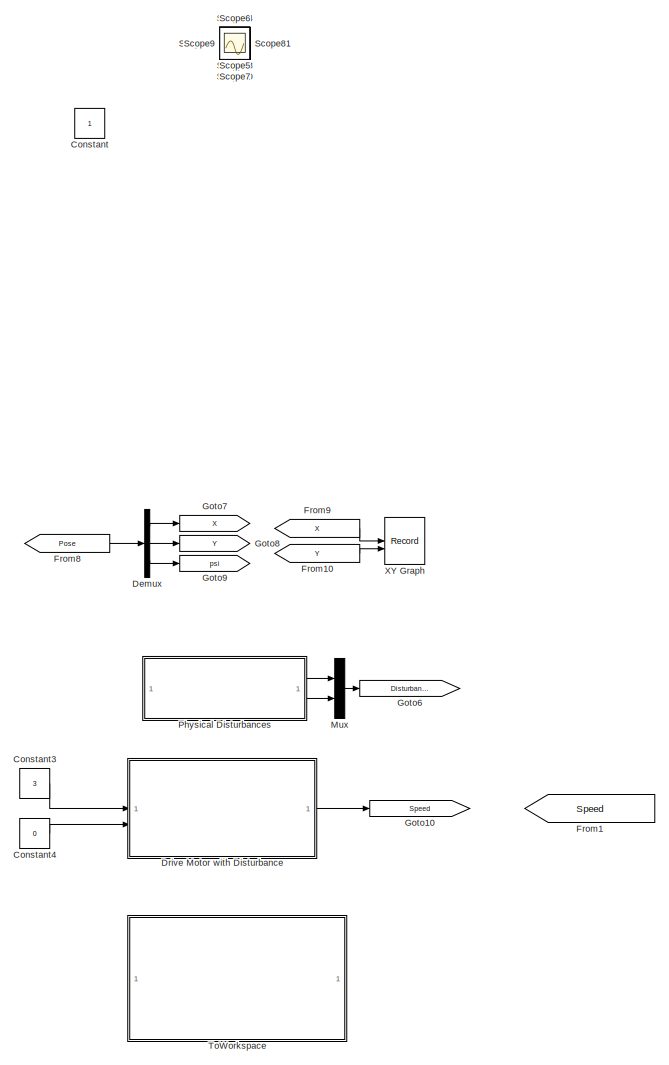
[diagram: root canvas - part 1/3, right side, full height]
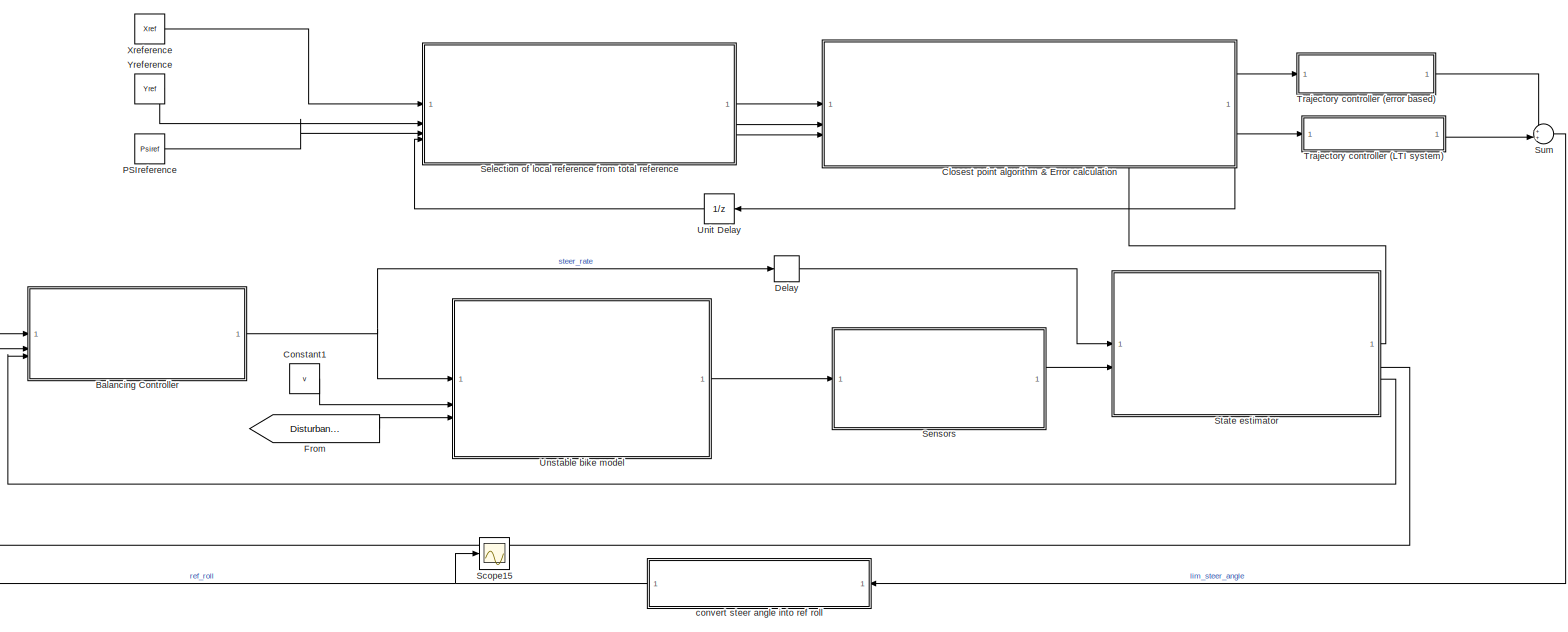
[diagram: root canvas - part 2/3, central region]
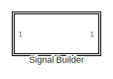
[diagram: root canvas - part 3/3, middle left region]
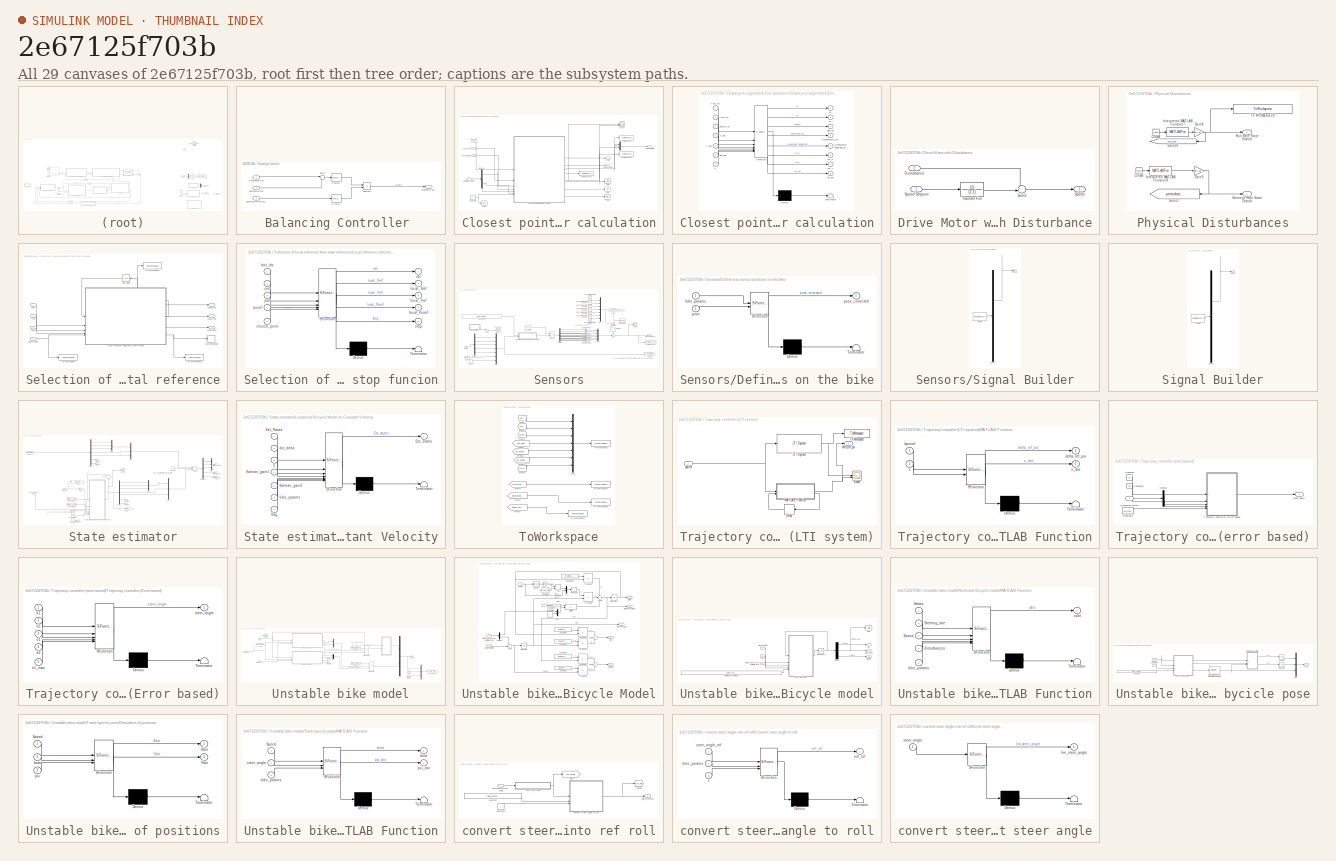
[diagram: thumbnail index - all 29 canvases of the model, root first then tree order]
MODEL slx_2e67125f703b
KIND model
CONFIG AbsTol = auto
CONFIG EnableMultiTasking = off
CONFIG FixedStep = auto
CONFIG MaxStep = auto
CONFIG MinStep = auto
CONFIG RelTol = 1e-3
CONFIG SampleTimeConstraint = Unconstrained
CONFIG SolverName = VariableStepAuto
CONFIG StartTime = 0.0
CONFIG StopTime = sim_time-0.02
BLOCK [SubSystem] Balancing Controller 
  MinAlgLoopOccurrences = on
  SystemSampleTime = Ts
  TreatAsAtomicUnit = on
BLOCK [Reference] Balancing Controller /D term1  REF=slpidlib/PID Controller
  SourceBlock = slpidlib/PID Controller
  SourceType = PID 1dof
BLOCK [Inport] Balancing Controller /Estimated Roll
  Port = 2
BLOCK [Inport] Balancing Controller /Estimated Roll Rate
  Port = 3
BLOCK [Reference] Balancing Controller /P term1  REF=slpidlib/PID Controller
  SourceBlock = slpidlib/PID Controller
  SourceType = PID 1dof
BLOCK [Inport] Balancing Controller /Reference Roll
BLOCK [Outport] Balancing Controller /Steering Rate
BLOCK [Sum] Balancing Controller /Subtract
  IconShape = rectangular
  Inputs = +-
BLOCK [Sum] Balancing Controller /Sum2
  Inputs = |+-
BLOCK [SubSystem] Closest point algorithm & Error calculation
  PortSchema = {"entries":[{"content":{"sides":[{"content":{"connectorIds":["In1","In2","In3"]},"type":"ConnectorPlacement.EquallySpacedRectSide","uuid":"cc846df4-97c1-4e38-a551-63d96742d514"},{"content":{"connectorIds":["Out1","Out2"],"side":"RIGHT"},"type":"ConnectorPlacement.EquallySpacedRectSide","uuid":"926eeee4-c51a-40d9-a9a1-df7a0c76cd55"},{"content":{"connectorIds":[],"side":"TOP"},"type":"ConnectorPlace...<+415ch>
BLOCK [SubSystem] Closest point algorithm & Error calculation/Closest point algorithm & Error calculation
  ErrorFcn = Stateflow.Translate.translate
  PermitHierarchicalResolution = ExplicitOnly
  SFBlockType = MATLAB Function
  TreatAsAtomicUnit = on
BLOCK [Demux] Closest point algorithm & Error calculation/Closest point algorithm & Error calculation/ Demux 
  Outputs = 1
BLOCK [S-Function] Closest point algorithm & Error calculation/Closest point algorithm & Error calculation/ SFunction 
  EnableBusSupport = on
  FunctionName = sf_sfun
  PortCounts = [7 9]
  SFcnIsStateOwnerBlock = off
  SFunctionDeploymentMode = off
  Tag = Stateflow S-Function 5
BLOCK [Terminator] Closest point algorithm & Error calculation/Closest point algorithm & Error calculation/ Terminator 
BLOCK [Inport] Closest point algorithm & Error calculation/Closest point algorithm & Error calculation/X_est
  Port = 4
BLOCK [Inport] Closest point algorithm & Error calculation/Closest point algorithm & Error calculation/Xref_loc
BLOCK [Inport] Closest point algorithm & Error calculation/Closest point algorithm & Error calculation/Y_est
  Port = 5
BLOCK [Inport] Closest point algorithm & Error calculation/Closest point algorithm & Error calculation/Yref_loc
  Port = 2
BLOCK [Outport] Closest point algorithm & Error calculation/Closest point algorithm & Error calculation/closestpoint_heading_idx
  Port = 5
BLOCK [Outport] Closest point algorithm & Error calculation/Closest point algorithm & Error calculation/closestpoint_idx
  Port = 4
BLOCK [Outport] Closest point algorithm & Error calculation/Closest point algorithm & Error calculation/dpsiref
  Port = 3
BLOCK [Outport] Closest point algorithm & Error calculation/Closest point algorithm & Error calculation/e1
BLOCK [Outport] Closest point algorithm & Error calculation/Closest point algorithm & Error calculation/e2
  Port = 2
BLOCK [Inport] Closest point algorithm & Error calculation/Closest point algorithm & Error calculation/psi_est
  Port = 6
BLOCK [Inport] Closest point algorithm & Error calculation/Closest point algorithm & Error calculation/psiref_loc
  Port = 3
BLOCK [Outport] Closest point algorithm & Error calculation/Closest point algorithm & Error calculation/ref_X
  Port = 6
BLOCK [Outport] Closest point algorithm & Error calculation/Closest point algorithm & Error calculation/ref_Y
  Port = 7
BLOCK [Outport] Closest point algorithm & Error calculation/Closest point algorithm & Error calculation/ref_psi
  Port = 8
BLOCK [Inport] Closest point algorithm & Error calculation/Closest point algorithm & Error calculation/v
  Port = 7
BLOCK [Constant] Closest point algorithm & Error calculation/Constant1
  Value = v
BLOCK [Demux] Closest point algorithm & Error calculation/Demux1
  Outputs = 3
BLOCK [Inport] Closest point algorithm & Error calculation/Estimated_states
  Port = 4
BLOCK [Goto] Closest point algorithm & Error calculation/Goto
  GotoTag = refX
  TagVisibility = global
BLOCK [Goto] Closest point algorithm & Error calculation/Goto1
  GotoTag = refY
  TagVisibility = global
BLOCK [Goto] Closest point algorithm & Error calculation/Goto2
  GotoTag = refPsi
  TagVisibility = global
BLOCK [Goto] Closest point algorithm & Error calculation/Goto3
  GotoTag = ref_v
  TagVisibility = global
BLOCK [Inport] Closest point algorithm & Error calculation/Local_Psiref
  Port = 3
BLOCK [Inport] Closest point algorithm & Error calculation/Local_Xref
BLOCK [Inport] Closest point algorithm & Error calculation/Local_Yref
  Port = 2
BLOCK [Mux] Closest point algorithm & Error calculation/Mux1
  DisplayOption = bar
  Inputs = 2
BLOCK [Scope] Closest point algorithm & Error calculation/Scope
  Floating = off
  NumInputPorts = 2
  ScopeSpecificationString = Simulink.scopes.TimeScopeBlockCfg('CurrentConfiguration', extmgr.ConfigurationSet(extmgr.Configuration('Core','General UI',true),extmgr.Configuration('Core','Source UI',true),extmgr.Configuration('Sources','WiredSimulink',true,'DataLoggingVariableName','ScopeData2'),extmgr.Configuration('Visuals','Time Domain',true,'SerializedDisplays',{struct('MinYLimReal','-0.40909','MaxYLimReal','0.31717','YLab...<+1552ch>
BLOCK [ToWorkspace] Closest point algorithm & Error calculation/To Workspace3
  FixptAsFi = on
  MaxDataPoints = inf
  SampleTime = -1
  SaveFormat = Timeseries
  VariableName = error1
BLOCK [ToWorkspace] Closest point algorithm & Error calculation/To Workspace4
  FixptAsFi = on
  MaxDataPoints = inf
  SampleTime = -1
  SaveFormat = Timeseries
  VariableName = error2
BLOCK [ToWorkspace] Closest point algorithm & Error calculation/To Workspace5
  FixptAsFi = on
  MaxDataPoints = inf
  SampleTime = -1
  SaveFormat = Timeseries
  VariableName = closestpoint_heading
BLOCK [Outport] Closest point algorithm & Error calculation/Trajectory errors
BLOCK [Outport] Closest point algorithm & Error calculation/closest_point
  Port = 3
BLOCK [Outport] Closest point algorithm & Error calculation/dpsiref
  Port = 2
BLOCK [Constant] Constant
  IOType = siggen
BLOCK [Constant] Constant1
  Value = v
BLOCK [Constant] Constant3
  Value = 3
BLOCK [Constant] Constant4
  Value = 0
BLOCK [Delay] Delay
  DelayLength = 1
  InputPortMap = u0
  SampleTime = Ts
BLOCK [Demux] Demux
  Commented = on
  Outputs = 3
BLOCK [SubSystem] Drive Motor with Disturbance
BLOCK [Inport] Drive Motor with Disturbance/Disturbance
  Port = 2
BLOCK [Outport] Drive Motor with Disturbance/Speed
BLOCK [Inport] Drive Motor with Disturbance/Speed Setpoint
BLOCK [Sum] Drive Motor with Disturbance/Sum2
  Inputs = ++|
BLOCK [TransferFcn] Drive Motor with Disturbance/Transfer Fcn
  Denominator = [2 1]
BLOCK [From] From
  GotoTag = Disturbances
BLOCK [From] From1
  Commented = on
  GotoTag = Speed
  TagVisibility = global
BLOCK [From] From10
  Commented = on
  GotoTag = Y
BLOCK [From] From8
  Commented = on
  GotoTag = Pose
BLOCK [From] From9
  Commented = on
  GotoTag = X
BLOCK [Goto] Goto10
  Commented = on
  GotoTag = Speed
  TagVisibility = global
BLOCK [Goto] Goto6
  GotoTag = Disturbances
BLOCK [Goto] Goto7
  Commented = on
  GotoTag = X
BLOCK [Goto] Goto8
  Commented = on
  GotoTag = Y
BLOCK [Goto] Goto9
  Commented = on
  GotoTag = psi
BLOCK [Mux] Mux
  DisplayOption = bar
  Inputs = 2
BLOCK [Constant] PSIreference
  Value = Psiref
BLOCK [SubSystem] Physical Disturbances
  Commented = on
BLOCK [Clock] Physical Disturbances/Clock8
  Decimation = 1
BLOCK [Clock] Physical Disturbances/Clock9
  Decimation = 1
BLOCK [Gain] Physical Disturbances/Gain8
  Gain = pert_phidot_state
BLOCK [Gain] Physical Disturbances/Gain9
  Gain = pert_deltadot_state
BLOCK [Goto] Physical Disturbances/Goto26
  Commented = on
  GotoTag = perturbation_phidot_state
  NameLocation = top
  TagVisibility = global
BLOCK [Goto] Physical Disturbances/Goto27
  Commented = on
  GotoTag = perturbation_deltadot_state
  NameLocation = top
  TagVisibility = global
BLOCK [MATLABFcn] Physical Disturbances/Interpreted MATLAB Function7
  MATLABFcn = double(pert_phidot_state_fun(u))
BLOCK [MATLABFcn] Physical Disturbances/Interpreted MATLAB Function8
  MATLABFcn = double(pert_deltadot_state_fun(u))
BLOCK [Outport] Physical Disturbances/Roll Rate State Disturb
BLOCK [Outport] Physical Disturbances/Steering Rate State Disturb
  Port = 2
BLOCK [ToWorkspace] Physical Disturbances/To Workspace28
  FixptAsFi = on
  MaxDataPoints = inf
  SampleTime = -1
  SaveFormat = Timeseries
  VariableName = Disturbance_RollRate
BLOCK [Scope] Scope
  Floating = off
  IOType = viewer
  NumInputPorts = 1
  ScopeSpecificationString = Simulink.scopes.TimeScopeBlockCfg('CurrentConfiguration', extmgr.ConfigurationSet(extmgr.Configuration('Core','General UI',true),extmgr.Configuration('Core','Source UI',true),extmgr.Configuration('Sources','WiredSimulink',true),extmgr.Configuration('Visuals','Time Domain',true,'SerializedDisplays',{struct('MinYLimReal','-1.00000','MaxYLimReal','1.00000','YLabelReal','','MinYLimMag','0.00000','MaxY...<+1320ch>
BLOCK [Scope] Scope1
  Floating = off
  IOType = viewer
  NumInputPorts = 1
  ScopeSpecificationString = Simulink.scopes.TimeScopeBlockCfg('CurrentConfiguration', extmgr.ConfigurationSet(extmgr.Configuration('Core','General UI',true),extmgr.Configuration('Core','Source UI',true),extmgr.Configuration('Sources','WiredSimulink',true,'DataLoggingVariableName','ScopeData1'),extmgr.Configuration('Visuals','Time Domain',true,'SerializedDisplays',{struct('MinYLimReal','-1.00000','MaxYLimReal','1.00000','YLab...<+1359ch>
BLOCK [Scope] Scope10
  Floating = off
  IOType = viewer
  NumInputPorts = 1
  ScopeSpecificationString = Simulink.scopes.TimeScopeBlockCfg('CurrentConfiguration', extmgr.ConfigurationSet(extmgr.Configuration('Core','General UI',true),extmgr.Configuration('Core','Source UI',true),extmgr.Configuration('Sources','WiredSimulink',true,'DataLoggingVariableName','ScopeData10'),extmgr.Configuration('Visuals','Time Domain',true,'SerializedDisplays',{struct('MinYLimReal','-1.00000','MaxYLimReal','1.00000','YLa...<+1360ch>
BLOCK [Scope] Scope11
  Floating = off
  IOType = viewer
  NumInputPorts = 1
  ScopeSpecificationString = Simulink.scopes.TimeScopeBlockCfg('CurrentConfiguration', extmgr.ConfigurationSet(extmgr.Configuration('Core','General UI',true),extmgr.Configuration('Core','Source UI',true),extmgr.Configuration('Sources','WiredSimulink',true,'DataLoggingVariableName','ScopeData11'),extmgr.Configuration('Visuals','Time Domain',true,'SerializedDisplays',{struct('MinYLimReal','-1.00000','MaxYLimReal','1.00000','YLa...<+1360ch>
BLOCK [Scope] Scope12
  Floating = off
  IOType = viewer
  NumInputPorts = 1
  ScopeSpecificationString = Simulink.scopes.TimeScopeBlockCfg('CurrentConfiguration', extmgr.ConfigurationSet(extmgr.Configuration('Core','General UI',true),extmgr.Configuration('Core','Source UI',true),extmgr.Configuration('Sources','WiredSimulink',true,'DataLoggingVariableName','ScopeData12'),extmgr.Configuration('Visuals','Time Domain',true,'SerializedDisplays',{struct('MinYLimReal','-1.00000','MaxYLimReal','1.00000','YLa...<+1383ch>
BLOCK [Scope] Scope13
  Floating = off
  IOType = viewer
  NumInputPorts = 1
  ScopeSpecificationString = Simulink.scopes.TimeScopeBlockCfg('CurrentConfiguration', extmgr.ConfigurationSet(extmgr.Configuration('Core','General UI',true),extmgr.Configuration('Core','Source UI',true),extmgr.Configuration('Sources','WiredSimulink',true,'DataLoggingVariableName','ScopeData13'),extmgr.Configuration('Visuals','Time Domain',true,'SerializedDisplays',{struct('MinYLimReal','-1.00000','MaxYLimReal','1.00000','YLa...<+1383ch>
BLOCK [Scope] Scope14
  Floating = off
  IOType = viewer
  NumInputPorts = 1
  ScopeSpecificationString = Simulink.scopes.TimeScopeBlockCfg('CurrentConfiguration', extmgr.ConfigurationSet(extmgr.Configuration('Core','General UI',true),extmgr.Configuration('Core','Source UI',true),extmgr.Configuration('Sources','WiredSimulink',true,'DataLoggingVariableName','ScopeData14'),extmgr.Configuration('Visuals','Time Domain',true,'SerializedDisplays',{struct('MinYLimReal','-0.01119','MaxYLimReal','0.02448','YLa...<+1370ch>
BLOCK [Scope] Scope15
  Floating = off
  NumInputPorts = 1
  ScopeSpecificationString = Simulink.scopes.TimeScopeBlockCfg('CurrentConfiguration', extmgr.ConfigurationSet(extmgr.Configuration('Core','General UI',true),extmgr.Configuration('Core','Source UI',true),extmgr.Configuration('Sources','WiredSimulink',true,'DataLoggingVariableName','ScopeData1'),extmgr.Configuration('Visuals','Time Domain',true,'SerializedDisplays',{struct('MinYLimReal','-0.20384','MaxYLimReal','0.02265','YLab...<+1421ch>
BLOCK [Scope] Scope2
  Floating = off
  IOType = viewer
  NumInputPorts = 1
  ScopeSpecificationString = Simulink.scopes.TimeScopeBlockCfg('CurrentConfiguration', extmgr.ConfigurationSet(extmgr.Configuration('Core','General UI',true),extmgr.Configuration('Core','Source UI',true),extmgr.Configuration('Sources','WiredSimulink',true,'DataLoggingVariableName','ScopeData2'),extmgr.Configuration('Visuals','Time Domain',true,'SerializedDisplays',{struct('MinYLimReal','-1.00000','MaxYLimReal','1.00000','YLab...<+1359ch>
BLOCK [Scope] Scope3
  Floating = off
  IOType = viewer
  NumInputPorts = 1
  ScopeSpecificationString = Simulink.scopes.TimeScopeBlockCfg('CurrentConfiguration', extmgr.ConfigurationSet(extmgr.Configuration('Core','General UI',true),extmgr.Configuration('Core','Source UI',true),extmgr.Configuration('Sources','WiredSimulink',true,'DataLoggingVariableName','ScopeData3'),extmgr.Configuration('Visuals','Time Domain',true,'SerializedDisplays',{struct('MinYLimReal','-1.00000','MaxYLimReal','1.00000','YLab...<+1359ch>
BLOCK [Scope] Scope4
  Floating = off
  IOType = viewer
  NumInputPorts = 1
  ScopeSpecificationString = Simulink.scopes.TimeScopeBlockCfg('CurrentConfiguration', extmgr.ConfigurationSet(extmgr.Configuration('Core','General UI',true),extmgr.Configuration('Core','Source UI',true),extmgr.Configuration('Sources','WiredSimulink',true,'DataLoggingVariableName','ScopeData4'),extmgr.Configuration('Visuals','Time Domain',true,'SerializedDisplays',{struct('MinYLimReal','-1.00000','MaxYLimReal','1.00000','YLab...<+1359ch>
BLOCK [Scope] Scope5
  Floating = off
  IOType = viewer
  NumInputPorts = 1
  ScopeSpecificationString = Simulink.scopes.TimeScopeBlockCfg('CurrentConfiguration', extmgr.ConfigurationSet(extmgr.Configuration('Core','General UI',true),extmgr.Configuration('Core','Source UI',true),extmgr.Configuration('Sources','WiredSimulink',true,'DataLoggingVariableName','ScopeData5'),extmgr.Configuration('Visuals','Time Domain',true,'SerializedDisplays',{struct('MinYLimReal','-1.00000','MaxYLimReal','1.00000','YLab...<+1359ch>
BLOCK [Scope] Scope6
  Floating = off
  IOType = viewer
  NumInputPorts = 1
  ScopeSpecificationString = Simulink.scopes.TimeScopeBlockCfg('CurrentConfiguration', extmgr.ConfigurationSet(extmgr.Configuration('Core','General UI',true),extmgr.Configuration('Core','Source UI',true),extmgr.Configuration('Sources','WiredSimulink',true,'DataLoggingVariableName','ScopeData6'),extmgr.Configuration('Visuals','Time Domain',true,'SerializedDisplays',{struct('MinYLimReal','-1.00000','MaxYLimReal','1.00000','YLab...<+1359ch>
BLOCK [Scope] Scope7
  Floating = off
  IOType = viewer
  NumInputPorts = 1
  ScopeSpecificationString = Simulink.scopes.TimeScopeBlockCfg('CurrentConfiguration', extmgr.ConfigurationSet(extmgr.Configuration('Core','General UI',true),extmgr.Configuration('Core','Source UI',true),extmgr.Configuration('Sources','WiredSimulink',true,'DataLoggingVariableName','ScopeData7'),extmgr.Configuration('Visuals','Time Domain',true,'SerializedDisplays',{struct('MinYLimReal','-1.00000','MaxYLimReal','1.00000','YLab...<+1359ch>
BLOCK [Scope] Scope8
  Floating = off
  IOType = viewer
  NumInputPorts = 1
  ScopeSpecificationString = Simulink.scopes.TimeScopeBlockCfg('CurrentConfiguration', extmgr.ConfigurationSet(extmgr.Configuration('Core','General UI',true),extmgr.Configuration('Core','Source UI',true),extmgr.Configuration('Sources','WiredSimulink',true,'DataLoggingVariableName','ScopeData8'),extmgr.Configuration('Visuals','Time Domain',true,'SerializedDisplays',{struct('MinYLimReal','-3.00505','MaxYLimReal','27.04548','YLa...<+1458ch>
BLOCK [Scope] Scope9
  Floating = off
  IOType = viewer
  NumInputPorts = 1
  ScopeSpecificationString = Simulink.scopes.TimeScopeBlockCfg('CurrentConfiguration', extmgr.ConfigurationSet(extmgr.Configuration('Core','General UI',true),extmgr.Configuration('Core','Source UI',true),extmgr.Configuration('Sources','WiredSimulink',true,'DataLoggingVariableName','ScopeData9'),extmgr.Configuration('Visuals','Time Domain',true,'SerializedDisplays',{struct('MinYLimReal','-3.00505','MaxYLimReal','27.04548','YLa...<+1363ch>
BLOCK [SubSystem] Selection of local reference from total reference
BLOCK [SubSystem] Selection of local reference from total reference/Local reference selection & stop funcion
  ErrorFcn = Stateflow.Translate.translate
  PermitHierarchicalResolution = ExplicitOnly
  SFBlockType = MATLAB Function
  TreatAsAtomicUnit = on
BLOCK [Demux] Selection of local reference from total reference/Local reference selection & stop funcion/ Demux 
  Outputs = 1
BLOCK [S-Function] Selection of local reference from total reference/Local reference selection & stop funcion/ SFunction 
  EnableBusSupport = on
  FunctionName = sf_sfun
  Parameters = hor_dis,ref_dis
  PortCounts = [5 6]
  SFcnIsStateOwnerBlock = off
  SFunctionDeploymentMode = off
  Tag = Stateflow S-Function 7
BLOCK [Terminator] Selection of local reference from total reference/Local reference selection & stop funcion/ Terminator 
BLOCK [Inport] Selection of local reference from total reference/Local reference selection & stop funcion/closest_point
  Port = 5
BLOCK [Outport] Selection of local reference from total reference/Local reference selection & stop funcion/ids
BLOCK [Inport] Selection of local reference from total reference/Local reference selection & stop funcion/last_ids
BLOCK [Outport] Selection of local reference from total reference/Local reference selection & stop funcion/local_Psiref
  Port = 4
BLOCK [Outport] Selection of local reference from total reference/Local reference selection & stop funcion/local_Xref
  Port = 2
BLOCK [Outport] Selection of local reference from total reference/Local reference selection & stop funcion/local_Yref
  Port = 3
BLOCK [Inport] Selection of local reference from total reference/Local reference selection & stop funcion/psiref
  Port = 4
BLOCK [Outport] Selection of local reference from total reference/Local reference selection & stop funcion/stop
  Port = 5
BLOCK [Inport] Selection of local reference from total reference/Local reference selection & stop funcion/xref
  Port = 2
BLOCK [Inport] Selection of local reference from total reference/Local reference selection & stop funcion/yref
  Port = 3
BLOCK [Outport] Selection of local reference from total reference/Local_Psiref
  Port = 3
BLOCK [Outport] Selection of local reference from total reference/Local_Xref
BLOCK [Outport] Selection of local reference from total reference/Local_Yref
  Port = 2
BLOCK [Inport] Selection of local reference from total reference/Psiref
  Port = 3
BLOCK [Stop] Selection of local reference from total reference/Stop Simulation
BLOCK [ToWorkspace] Selection of local reference from total reference/To Workspace
  FixptAsFi = on
  MaxDataPoints = inf
  SampleTime = -1
  SaveFormat = Timeseries
  VariableName = closest_point
BLOCK [ToWorkspace] Selection of local reference from total reference/To Workspace1
  FixptAsFi = on
  MaxDataPoints = inf
  SampleTime = -1
  SaveFormat = Timeseries
  VariableName = ids
BLOCK [ToWorkspace] Selection of local reference from total reference/To Workspace2
  FixptAsFi = on
  MaxDataPoints = inf
  SampleTime = -1
  SaveFormat = Timeseries
  VariableName = stop
BLOCK [UnitDelay] Selection of local reference from total reference/Unit Delay
  HasFrameUpgradeWarning = on
  InitialCondition = 1
  SampleTime = Ts
BLOCK [Inport] Selection of local reference from total reference/Xref
BLOCK [Inport] Selection of local reference from total reference/Yref
  Port = 2
BLOCK [Inport] Selection of local reference from total reference/closes_point
  Port = 4
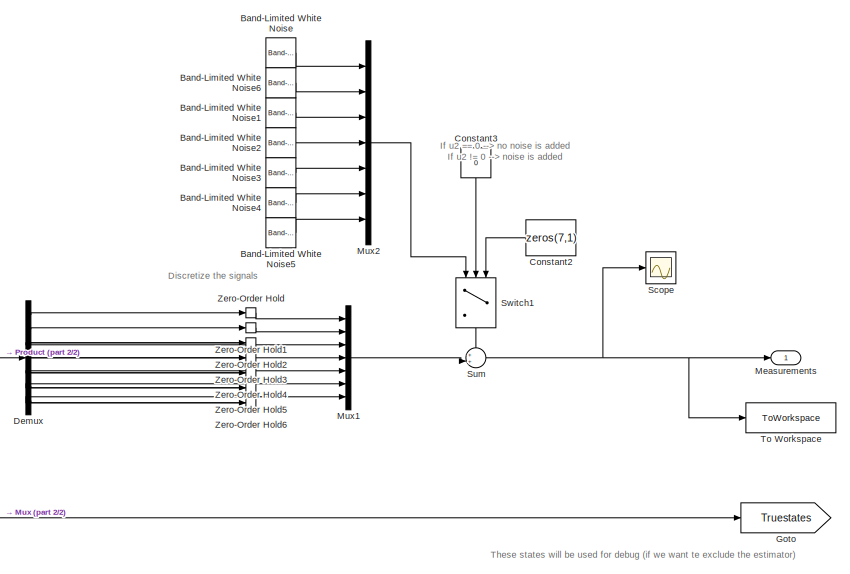
[diagram: Sensors - part 1/2, right side, full height]
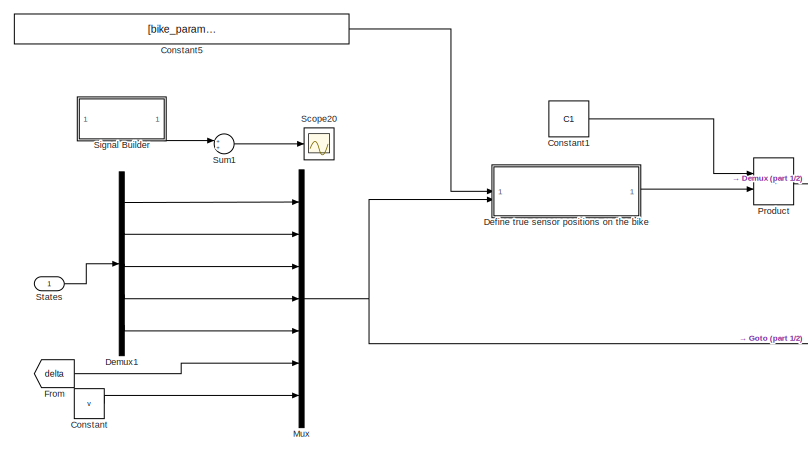
[diagram: Sensors - part 2/2, middle left region]
BLOCK [SubSystem] Sensors
BLOCK [Reference] Sensors/Band-Limited White Noise  REF=simulink/Sources/Band-Limited
White Noise
  SourceBlock = simulink/Sources/Band-Limited\nWhite Noise
  SourceType = Band-Limited White Noise.
BLOCK [Reference] Sensors/Band-Limited White Noise1  REF=simulink/Sources/Band-Limited
White Noise
  SourceBlock = simulink/Sources/Band-Limited\nWhite Noise
  SourceType = Band-Limited White Noise.
BLOCK [Reference] Sensors/Band-Limited White Noise2  REF=simulink/Sources/Band-Limited
White Noise
  SourceBlock = simulink/Sources/Band-Limited\nWhite Noise
  SourceType = Band-Limited White Noise.
BLOCK [Reference] Sensors/Band-Limited White Noise3  REF=simulink/Sources/Band-Limited
White Noise
  SourceBlock = simulink/Sources/Band-Limited\nWhite Noise
  SourceType = Band-Limited White Noise.
BLOCK [Reference] Sensors/Band-Limited White Noise4  REF=simulink/Sources/Band-Limited
White Noise
  SourceBlock = simulink/Sources/Band-Limited\nWhite Noise
  SourceType = Band-Limited White Noise.
BLOCK [Reference] Sensors/Band-Limited White Noise5  REF=simulink/Sources/Band-Limited
White Noise
  SourceBlock = simulink/Sources/Band-Limited\nWhite Noise
  SourceType = Band-Limited White Noise.
BLOCK [Reference] Sensors/Band-Limited White Noise6  REF=simulink/Sources/Band-Limited
White Noise
  SourceBlock = simulink/Sources/Band-Limited\nWhite Noise
  SourceType = Band-Limited White Noise.
BLOCK [Constant] Sensors/Constant
  Value = v
BLOCK [Constant] Sensors/Constant1
  Value = C1
BLOCK [Constant] Sensors/Constant2
  NameLocation = top
  Value = zeros(7,1)
BLOCK [Constant] Sensors/Constant3
  NameLocation = left
  Value = 0
BLOCK [Constant] Sensors/Constant5
  Value = [bike_params.Xgps bike_params.Ygps bike_params.Hgps]
BLOCK [SubSystem] Sensors/Define true sensor positions on the bike
  ErrorFcn = Stateflow.Translate.translate
  LibrarySourceBlock = simulink/User-Defined\nFunctions/MATLAB Function
  PermitHierarchicalResolution = ExplicitOnly
  SFBlockType = MATLAB Function
  TreatAsAtomicUnit = on
BLOCK [Demux] Sensors/Define true sensor positions on the bike/ Demux 
  Outputs = 1
BLOCK [S-Function] Sensors/Define true sensor positions on the bike/ SFunction 
  EnableBusSupport = on
  FunctionName = sf_sfun
  PortCounts = [2 2]
  SFcnIsStateOwnerBlock = off
  SFunctionDeploymentMode = off
  Tag = Stateflow S-Function 3
BLOCK [Terminator] Sensors/Define true sensor positions on the bike/ Terminator 
BLOCK [Inport] Sensors/Define true sensor positions on the bike/bike_params
BLOCK [Inport] Sensors/Define true sensor positions on the bike/pose
  Port = 2
BLOCK [Outport] Sensors/Define true sensor positions on the bike/pose_corrected
BLOCK [Demux] Sensors/Demux
  Outputs = 7
BLOCK [Demux] Sensors/Demux1
  Outputs = 5
BLOCK [From] Sensors/From
  GotoTag = delta
  TagVisibility = global
BLOCK [Goto] Sensors/Goto
  GotoTag = Truestates
  TagVisibility = global
BLOCK [Outport] Sensors/Measurements
BLOCK [Mux] Sensors/Mux
  DisplayOption = bar
  Inputs = 7
BLOCK [Mux] Sensors/Mux1
  DisplayOption = bar
  Inputs = 7
BLOCK [Mux] Sensors/Mux2
  DisplayOption = bar
  Inputs = 7
BLOCK [Product] Sensors/Product
  Multiplication = Matrix(*)
BLOCK [Scope] Sensors/Scope
  Floating = off
  NumInputPorts = 1
  ScopeSpecificationString = Simulink.scopes.TimeScopeBlockCfg('CurrentConfiguration', extmgr.ConfigurationSet(extmgr.Configuration('Core','General UI',true),extmgr.Configuration('Core','Source UI',true),extmgr.Configuration('Sources','WiredSimulink',true),extmgr.Configuration('Visuals','Time Domain',true,'SerializedDisplays',{struct('MinYLimReal','-5.29683','MaxYLimReal','43.95879','YLabelReal','','MinYLimMag','0.00000','Max...<+1377ch>
BLOCK [Scope] Sensors/Scope20
  Floating = off
  NumInputPorts = 1
  ScopeSpecificationString = Simulink.scopes.TimeScopeBlockCfg('CurrentConfiguration', extmgr.ConfigurationSet(extmgr.Configuration('Core','General UI',true),extmgr.Configuration('Core','Source UI',true),extmgr.Configuration('Sources','WiredSimulink',true,'DataLoggingVariableName','ScopeData1'),extmgr.Configuration('Visuals','Time Domain',true,'SerializedDisplays',{struct('MinYLimReal','-0.65853','MaxYLimReal','5.85394','YLab...<+1440ch>
BLOCK [SubSystem] Sensors/Signal Builder
  ClipboardFcn = sigbuilder_block('clipboard');
  CloseFcn = sigbuilder_block('close');
  ContinueFcn = sigbuilder_block('continue');
  CopyFcn = sigbuilder_block('copy');
  DeleteFcn = sigbuilder_block('delete');
  LoadFcn = sigbuilder_block('load');
  MaskHideContents = on
  ModelCloseFcn = sigbuilder_block('modelClose');
  NameChangeFcn = sigbuilder_block('namechange');
  OpenFcn = sigbuilder_block('open',[5.4 36 1141.2 516.6 ]);
  PauseFcn = sigbuilder_block('pause');
  PreSaveFcn = sigbuilder_block('preSave');
  StartFcn = sigbuilder_block('start');
  StopFcn = sigbuilder_block('stop');
  Tag = STV Subsys
BLOCK [Demux] Sensors/Signal Builder/Demux
  DisplayOption = none
  Outputs = 1
  Tag = STV Demux
BLOCK [FromWorkspace] Sensors/Signal Builder/FromWs
  Tag = STV FromWs
  VariableName = tuvar
BLOCK [Outport] Sensors/Signal Builder/Signal 1
  Tag = STV Outport
BLOCK [Inport] Sensors/States
BLOCK [Sum] Sensors/Sum
  Inputs = ++|
BLOCK [Sum] Sensors/Sum1
  Inputs = ++|
BLOCK [Switch] Sensors/Switch1
  Criteria = u2 ~= 0
  InputSameDT = off
  NameLocation = left
  SaturateOnIntegerOverflow = off
BLOCK [ToWorkspace] Sensors/To Workspace
  FixptAsFi = on
  MaxDataPoints = inf
  SampleTime = -1
  SaveFormat = Timeseries
  VariableName = measurements
BLOCK [ZeroOrderHold] Sensors/Zero-Order Hold
  SampleTime = 10*Ts
BLOCK [ZeroOrderHold] Sensors/Zero-Order Hold1
  SampleTime = 10*Ts
BLOCK [ZeroOrderHold] Sensors/Zero-Order Hold2
  SampleTime = Ts
BLOCK [ZeroOrderHold] Sensors/Zero-Order Hold3
  SampleTime = Ts
BLOCK [ZeroOrderHold] Sensors/Zero-Order Hold4
  SampleTime = Ts
BLOCK [ZeroOrderHold] Sensors/Zero-Order Hold5
  SampleTime = Ts
BLOCK [ZeroOrderHold] Sensors/Zero-Order Hold6
  SampleTime = Ts
BLOCK [SubSystem] Signal Builder
  ClipboardFcn = sigbuilder_block('clipboard');
  CloseFcn = sigbuilder_block('close');
  ContinueFcn = sigbuilder_block('continue');
  CopyFcn = sigbuilder_block('copy');
  DeleteFcn = sigbuilder_block('delete');
  LoadFcn = sigbuilder_block('load');
  MaskHideContents = on
  ModelCloseFcn = sigbuilder_block('modelClose');
  NameChangeFcn = sigbuilder_block('namechange');
  OpenFcn = sigbuilder_block('open',[437.6 199.2 550.4 400 ]);
  PauseFcn = sigbuilder_block('pause');
  PreSaveFcn = sigbuilder_block('preSave');
  StartFcn = sigbuilder_block('start');
  StopFcn = sigbuilder_block('stop');
  Tag = STV Subsys
BLOCK [Demux] Signal Builder/Demux
  DisplayOption = none
  Outputs = 1
  Tag = STV Demux
BLOCK [FromWorkspace] Signal Builder/FromWs
  Tag = STV FromWs
  VariableName = tuvar
BLOCK [Outport] Signal Builder/Signal 1
  Tag = STV Outport
BLOCK [SubSystem] State estimator
BLOCK [Constant] State estimator/Constant
  Value = [bike_params.Xgps_mod bike_params.Ygps_mod bike_params.Hgps_mod]
BLOCK [Constant] State estimator/Constant2
  SampleTime = Ts
  Value = Kalman_gain1
BLOCK [Constant] State estimator/Constant3
  Value = 0
BLOCK [Constant] State estimator/Constant4
  SampleTime = Ts
  Value = Kalman_gain2
BLOCK [Constant] State estimator/Constant5
  Value = 0
BLOCK [Reference] State estimator/Counter Limited  REF=simulink/Sources/Counter
Limited
  SourceBlock = simulink/Sources/Counter\nLimited
  SourceType = Counter Limited
BLOCK [Delay] State estimator/Delay
  DelayLength = 1
  InitialCondition = [initial_state_estimate.x initial_state_estimate.y initial_state_estimate.heading initial_state.roll initial_state.roll_rate initial_state.steering v]
  InputPortMap = u0
  NameLocation = right
  SampleTime = Ts
BLOCK [Demux] State estimator/Demux
  Outputs = 7
BLOCK [Demux] State estimator/Demux1
  Outputs = 7
BLOCK [Demux] State estimator/Demux3
  Outputs = 5
BLOCK [Outport] State estimator/Estimated_Roll
  Port = 2
  VectorParamsAs1DForOutWhenUnconnected = off
BLOCK [Outport] State estimator/Estimated_Roll_Rate
  Port = 3
  VectorParamsAs1DForOutWhenUnconnected = off
BLOCK [Outport] State estimator/Estimated_X//Y//Psi
  VectorParamsAs1DForOutWhenUnconnected = off
BLOCK [From] State estimator/From
  GotoTag = Truestates
  TagVisibility = global
BLOCK [Gain] State estimator/Gain
BLOCK [Goto] State estimator/Goto
  GotoTag = estimated_states
  TagVisibility = global
BLOCK [Goto] State estimator/Goto1
  GotoTag = steer_rate_estimator
  TagVisibility = global
BLOCK [SubSystem] State estimator/Linearized Bicycle Model on Constant Velocity
  ErrorFcn = Stateflow.Translate.translate
  PermitHierarchicalResolution = ExplicitOnly
  SFBlockType = MATLAB Function
  TreatAsAtomicUnit = on
BLOCK [Demux] State estimator/Linearized Bicycle Model on Constant Velocity/ Demux 
  Outputs = 1
BLOCK [S-Function] State estimator/Linearized Bicycle Model on Constant Velocity/ SFunction 
  EnableBusSupport = on
  FunctionName = sf_sfun
  Parameters = A_d,B_d,C1,C2,D1,D2,T
  PortCounts = [7 2]
  SFcnIsStateOwnerBlock = off
  SFunctionDeploymentMode = off
  Tag = Stateflow S-Function 10
BLOCK [Terminator] State estimator/Linearized Bicycle Model on Constant Velocity/ Terminator 
BLOCK [Inport] State estimator/Linearized Bicycle Model on Constant Velocity/Est_States
BLOCK [Outport] State estimator/Linearized Bicycle Model on Constant Velocity/Est_states
  VectorParamsAs1DForOutWhenUnconnected = off
BLOCK [Inport] State estimator/Linearized Bicycle Model on Constant Velocity/Kalman_gain1
  Port = 4
BLOCK [Inport] State estimator/Linearized Bicycle Model on Constant Velocity/Kalman_gain2
  Port = 5
BLOCK [Inport] State estimator/Linearized Bicycle Model on Constant Velocity/bike_params
  Port = 6
BLOCK [Inport] State estimator/Linearized Bicycle Model on Constant Velocity/dot_delta
  Port = 2
BLOCK [Inport] State estimator/Linearized Bicycle Model on Constant Velocity/flag
  Port = 7
BLOCK [Inport] State estimator/Linearized Bicycle Model on Constant Velocity/y
  Port = 3
BLOCK [Mux] State estimator/Mux
  DisplayOption = bar
  Inputs = 3
BLOCK [Mux] State estimator/Mux1
  DisplayOption = bar
  Inputs = 3
BLOCK [Mux] State estimator/Mux2
  DisplayOption = bar
  Inputs = 3
BLOCK [Mux] State estimator/Mux3
  DisplayOption = bar
  Inputs = 3
BLOCK [Mux] State estimator/Mux4
  DisplayOption = bar
  Inputs = 3
BLOCK [Scope] State estimator/Scope
  Floating = off
  NumInputPorts = 1
  ScopeSpecificationString = Simulink.scopes.TimeScopeBlockCfg('CurrentConfiguration', extmgr.ConfigurationSet(extmgr.Configuration('Core','General UI',true),extmgr.Configuration('Core','Source UI',true),extmgr.Configuration('Sources','WiredSimulink',true,'DataLoggingVariableName','ScopeData2'),extmgr.Configuration('Visuals','Time Domain',true,'SerializedDisplays',{struct('MinYLimReal','-5.025','MaxYLimReal','44.00674','YLabe...<+1706ch>
BLOCK [Switch] State estimator/Switch
  Criteria = u2 ~= 0
  InputSameDT = off
  SaturateOnIntegerOverflow = off
BLOCK [Terminator] State estimator/Terminator
BLOCK [Terminator] State estimator/Terminator1
BLOCK [Terminator] State estimator/Terminator2
BLOCK [Terminator] State estimator/Terminator3
BLOCK [Terminator] State estimator/Terminator4
BLOCK [Inport] State estimator/measurements
  Port = 2
BLOCK [Inport] State estimator/steer_rate
BLOCK [Sum] Sum
  Inputs = ++|
BLOCK [SubSystem] ToWorkspace
BLOCK [From] ToWorkspace/From
  GotoTag = refX
  TagVisibility = global
BLOCK [From] ToWorkspace/From1
  GotoTag = refY
  TagVisibility = global
BLOCK [From] ToWorkspace/From2
  GotoTag = refPsi
  TagVisibility = global
BLOCK [From] ToWorkspace/From3
  GotoTag = ref_steer_angle
  TagVisibility = global
BLOCK [From] ToWorkspace/From4
  GotoTag = ref_Roll
  TagVisibility = global
BLOCK [From] ToWorkspace/From5
  GotoTag = ref_v
  TagVisibility = global
BLOCK [From] ToWorkspace/From6
  GotoTag = ref_steer_rate
  TagVisibility = global
BLOCK [From] ToWorkspace/From7
  GotoTag = true_states
  TagVisibility = global
BLOCK [From] ToWorkspace/From8
  GotoTag = estimated_states
  TagVisibility = global
BLOCK [From] ToWorkspace/From9
  GotoTag = steer_rate_estimator
  TagVisibility = global
BLOCK [Mux] ToWorkspace/Mux
  DisplayOption = bar
  Inputs = 7
BLOCK [ToWorkspace] ToWorkspace/To Workspace
  FixptAsFi = on
  MaxDataPoints = inf
  SampleTime = -1
  SaveFormat = Timeseries
  VariableName = ref_states
BLOCK [ToWorkspace] ToWorkspace/To Workspace1
  FixptAsFi = on
  MaxDataPoints = inf
  SampleTime = -1
  SaveFormat = Timeseries
  VariableName = bike_states
BLOCK [ToWorkspace] ToWorkspace/To Workspace2
  FixptAsFi = on
  MaxDataPoints = inf
  SampleTime = -1
  SaveFormat = Timeseries
  VariableName = steerrate_input
BLOCK [ToWorkspace] ToWorkspace/To Workspace6
  FixptAsFi = on
  MaxDataPoints = inf
  SampleTime = -1
  SaveFormat = Timeseries
  VariableName = estimated_states
BLOCK [SubSystem] Trajectory controller (LTI system)
BLOCK [Delay] Trajectory controller (LTI system)/Delay
  DelayLength = 1
  InputPortMap = u0
  NameLocation = top
  SampleTime = Ts
BLOCK [Reference] Trajectory controller (LTI system)/LTI System  REF=cstblocks/LTI System
  SourceBlock = cstblocks/LTI System
  SourceType = LTI Block
BLOCK [SubSystem] Trajectory controller (LTI system)/MATLAB Function
  ErrorFcn = Stateflow.Translate.translate
  LibrarySourceBlock = simulink/User-Defined\nFunctions/MATLAB Function
  PermitHierarchicalResolution = ExplicitOnly
  SFBlockType = MATLAB Function
  TreatAsAtomicUnit = on
BLOCK [Demux] Trajectory controller (LTI system)/MATLAB Function/ Demux 
  Outputs = 1
BLOCK [S-Function] Trajectory controller (LTI system)/MATLAB Function/ SFunction 
  EnableBusSupport = on
  FunctionName = sf_sfun
  Parameters = Ad_t,Bd_t,C_t,D_t
  PortCounts = [2 3]
  SFcnIsStateOwnerBlock = off
  SFunctionDeploymentMode = off
  Tag = Stateflow S-Function 9
BLOCK [Terminator] Trajectory controller (LTI system)/MATLAB Function/ Terminator 
BLOCK [Outport] Trajectory controller (LTI system)/MATLAB Function/delta_ref_psi
BLOCK [Inport] Trajectory controller (LTI system)/MATLAB Function/dpsiref
BLOCK [Inport] Trajectory controller (LTI system)/MATLAB Function/x
  Port = 2
BLOCK [Outport] Trajectory controller (LTI system)/MATLAB Function/x_dot
  Port = 2
BLOCK [Scope] Trajectory controller (LTI system)/Scope
  Floating = off
  NumInputPorts = 2
  ScopeSpecificationString = Simulink.scopes.TimeScopeBlockCfg('CurrentConfiguration', extmgr.ConfigurationSet(extmgr.Configuration('Core','General UI',true),extmgr.Configuration('Core','Source UI',true),extmgr.Configuration('Sources','WiredSimulink',true,'DataLoggingVariableName','ScopeData2'),extmgr.Configuration('Visuals','Time Domain',true,'SerializedDisplays',{struct('MinYLimReal','-0.01369','MaxYLimReal','0.12319','YLab...<+1517ch>
BLOCK [ToWorkspace] Trajectory controller (LTI system)/To Workspace
  FixptAsFi = on
  MaxDataPoints = inf
  SampleTime = -1
  SaveFormat = Timeseries
  VariableName = dpsiref_steer
BLOCK [Outport] Trajectory controller (LTI system)/delta_ref_psi
BLOCK [Inport] Trajectory controller (LTI system)/dpsiref
BLOCK [SubSystem] Trajectory controller (error based)
BLOCK [Constant] Trajectory controller (error based)/Constant
  Value = k1
BLOCK [Constant] Trajectory controller (error based)/Constant1
  Value = k2
BLOCK [Constant] Trajectory controller (error based)/Constant2
  Value = e1_max
BLOCK [Demux] Trajectory controller (error based)/Demux
  Outputs = 2
BLOCK [SubSystem] Trajectory controller (error based)/Trajectory controller (Error based)
  ErrorFcn = Stateflow.Translate.translate
  PermitHierarchicalResolution = ExplicitOnly
  SFBlockType = MATLAB Function
  TreatAsAtomicUnit = on
BLOCK [Demux] Trajectory controller (error based)/Trajectory controller (Error based)/ Demux 
  Outputs = 1
BLOCK [S-Function] Trajectory controller (error based)/Trajectory controller (Error based)/ SFunction 
  EnableBusSupport = on
  FunctionName = sf_sfun
  PortCounts = [5 2]
  SFcnIsStateOwnerBlock = off
  SFunctionDeploymentMode = off
  Tag = Stateflow S-Function 1
BLOCK [Terminator] Trajectory controller (error based)/Trajectory controller (Error based)/ Terminator 
BLOCK [Inport] Trajectory controller (error based)/Trajectory controller (Error based)/e1
  Port = 3
BLOCK [Inport] Trajectory controller (error based)/Trajectory controller (Error based)/e1_max
  Port = 5
BLOCK [Inport] Trajectory controller (error based)/Trajectory controller (Error based)/e2
  Port = 4
BLOCK [Inport] Trajectory controller (error based)/Trajectory controller (Error based)/k1
BLOCK [Inport] Trajectory controller (error based)/Trajectory controller (Error based)/k2
  Port = 2
BLOCK [Outport] Trajectory controller (error based)/Trajectory controller (Error based)/steer_angle
BLOCK [Inport] Trajectory controller (error based)/Trajectory errors
BLOCK [Outport] Trajectory controller (error based)/steer_angle
BLOCK [UnitDelay] Unit Delay
  HasFrameUpgradeWarning = on
  InitialCondition = ref_start_idx
  SampleTime = Ts
BLOCK [SubSystem] Unstable bike model
BLOCK [Constant] Unstable bike model/Constant
  Value = bike_model
BLOCK [Constant] Unstable bike model/Constant1
  Value = bike_model
BLOCK [Inport] Unstable bike model/Disturbance
  Port = 3
BLOCK [From] Unstable bike model/From
  GotoTag = delta
  TagVisibility = global
BLOCK [From] Unstable bike model/From1
  GotoTag = speed
BLOCK [Goto] Unstable bike model/Goto
  GotoTag = speed
BLOCK [Goto] Unstable bike model/Goto1
  GotoTag = true_states
  TagVisibility = global
BLOCK [Goto] Unstable bike model/Goto2
  GotoTag = ref_steer_rate
  TagVisibility = global
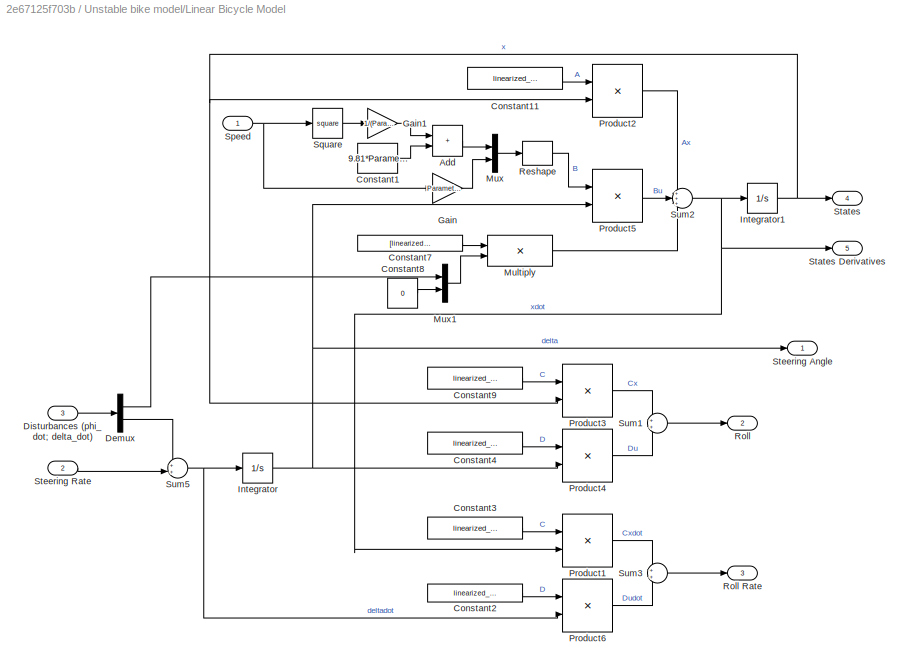
BLOCK [SubSystem] Unstable bike model/Linear Bicycle Model
  Commented = on
BLOCK [Sum] Unstable bike model/Linear Bicycle Model/Add
  IconShape = rectangular
BLOCK [Constant] Unstable bike model/Linear Bicycle Model/Constant1
  Value = 9.81*Parameters.inertia_front/(Parameters.h^3*Parameters.m)
BLOCK [Constant] Unstable bike model/Linear Bicycle Model/Constant11
  Value = linearized_sys.A
  VectorParams1D = off
BLOCK [Constant] Unstable bike model/Linear Bicycle Model/Constant2
  Value = linearized_sys.D
  VectorParams1D = off
BLOCK [Constant] Unstable bike model/Linear Bicycle Model/Constant3
  Value = linearized_sys.C
  VectorParams1D = off
BLOCK [Constant] Unstable bike model/Linear Bicycle Model/Constant4
  Value = linearized_sys.D
  VectorParams1D = off
BLOCK [Constant] Unstable bike model/Linear Bicycle Model/Constant7
  Value = [linearized_sys.C ; linearized_sys.C*linearized_sys.A]\eye(size(linearized_sys.A))
  VectorParams1D = off
BLOCK [Constant] Unstable bike model/Linear Bicycle Model/Constant8
  Value = 0
BLOCK [Constant] Unstable bike model/Linear Bicycle Model/Constant9
  Value = linearized_sys.C
  VectorParams1D = off
BLOCK [Demux] Unstable bike model/Linear Bicycle Model/Demux
  Outputs = 2
BLOCK [Inport] Unstable bike model/Linear Bicycle Model/Disturbances (phi_dot; delta_dot)
  Port = 3
BLOCK [Gain] Unstable bike model/Linear Bicycle Model/Gain
  Gain = Parameters.a/(Parameters.b*Parameters.h)
BLOCK [Gain] Unstable bike model/Linear Bicycle Model/Gain1
  Gain = 1/(Parameters.b*Parameters.h)
BLOCK [Integrator] Unstable bike model/Linear Bicycle Model/Integrator
  InitialCondition = Initial_State.steering
BLOCK [Integrator] Unstable bike model/Linear Bicycle Model/Integrator1
  InitialCondition = [linearized_sys.C ; linearized_sys.C*linearized_sys.A]\[Initial_State.roll ; Initial_State.roll_rate]
BLOCK [Product] Unstable bike model/Linear Bicycle Model/Multiply
  Multiplication = Matrix(*)
BLOCK [Mux] Unstable bike model/Linear Bicycle Model/Mux
  DisplayOption = bar
  Inputs = 2
BLOCK [Mux] Unstable bike model/Linear Bicycle Model/Mux1
  DisplayOption = bar
  Inputs = 2
BLOCK [Product] Unstable bike model/Linear Bicycle Model/Product1
  Multiplication = Matrix(*)
  NameLocation = top
  SCDEnableBlockLinearizationSpecification = on
BLOCK [Product] Unstable bike model/Linear Bicycle Model/Product2
  Multiplication = Matrix(*)
  NameLocation = top
  SCDEnableBlockLinearizationSpecification = on
BLOCK [Product] Unstable bike model/Linear Bicycle Model/Product3
  Multiplication = Matrix(*)
  NameLocation = top
  SCDEnableBlockLinearizationSpecification = on
BLOCK [Product] Unstable bike model/Linear Bicycle Model/Product4
  Multiplication = Matrix(*)
  NameLocation = top
  SCDEnableBlockLinearizationSpecification = on
BLOCK [Product] Unstable bike model/Linear Bicycle Model/Product5
  Multiplication = Matrix(*)
  NameLocation = top
  SCDEnableBlockLinearizationSpecification = on
BLOCK [Product] Unstable bike model/Linear Bicycle Model/Product6
  Multiplication = Matrix(*)
  NameLocation = top
  SCDEnableBlockLinearizationSpecification = on
BLOCK [Reshape] Unstable bike model/Linear Bicycle Model/Reshape
  OutputDimensionality = Customize
  OutputDimensions = [size(linearized_sys.B,1),size(linearized_sys.B,2)]
BLOCK [Outport] Unstable bike model/Linear Bicycle Model/Roll
  Port = 2
  VectorParamsAs1DForOutWhenUnconnected = off
BLOCK [Outport] Unstable bike model/Linear Bicycle Model/Roll Rate
  Port = 3
  VectorParamsAs1DForOutWhenUnconnected = off
BLOCK [Inport] Unstable bike model/Linear Bicycle Model/Speed
BLOCK [Math] Unstable bike model/Linear Bicycle Model/Square
  Operator = square
  SignedPower = on
BLOCK [Outport] Unstable bike model/Linear Bicycle Model/States
  Port = 4
  VectorParamsAs1DForOutWhenUnconnected = off
BLOCK [Outport] Unstable bike model/Linear Bicycle Model/States Derivatives
  Port = 5
  VectorParamsAs1DForOutWhenUnconnected = off
BLOCK [Outport] Unstable bike model/Linear Bicycle Model/Steering Angle
  VectorParamsAs1DForOutWhenUnconnected = off
BLOCK [Inport] Unstable bike model/Linear Bicycle Model/Steering Rate
  Port = 2
BLOCK [Sum] Unstable bike model/Linear Bicycle Model/Sum1
BLOCK [Sum] Unstable bike model/Linear Bicycle Model/Sum2
  Inputs = +++
BLOCK [Sum] Unstable bike model/Linear Bicycle Model/Sum3
BLOCK [Sum] Unstable bike model/Linear Bicycle Model/Sum5
  Inputs = ++|
BLOCK [MultiPortSwitch] Unstable bike model/Multiport Switch
  InputSameDT = off
  Inputs = 2
  SaturateOnIntegerOverflow = off
BLOCK [MultiPortSwitch] Unstable bike model/Multiport Switch1
  InputSameDT = off
  Inputs = 2
  SaturateOnIntegerOverflow = off
BLOCK [Mux] Unstable bike model/Mux
  DisplayOption = bar
  Inputs = 2
BLOCK [Mux] Unstable bike model/Mux1
  DisplayOption = bar
  Inputs = 2
BLOCK [Mux] Unstable bike model/Mux2
  DisplayOption = bar
  Inputs = 2
BLOCK [Mux] Unstable bike model/Mux3
  DisplayOption = bar
  Inputs = 3
BLOCK [SubSystem] Unstable bike model/Nonlinear Bicycle model
BLOCK [Demux] Unstable bike model/Nonlinear Bicycle model/Demux
  Outputs = 3
BLOCK [Inport] Unstable bike model/Nonlinear Bicycle model/Disturbances (phi_dot; delta_dot)
  Port = 3
BLOCK [Goto] Unstable bike model/Nonlinear Bicycle model/Goto
  GotoTag = delta
  TagVisibility = global
BLOCK [Integrator] Unstable bike model/Nonlinear Bicycle model/Integrator2
  InitialCondition = [initial_state.roll ; initial_state.steering ; initial_state.roll_rate]
BLOCK [SubSystem] Unstable bike model/Nonlinear Bicycle model/MATLAB Function
  ErrorFcn = Stateflow.Translate.translate
  LibrarySourceBlock = simulink/User-Defined\nFunctions/MATLAB Function
  PermitHierarchicalResolution = ExplicitOnly
  SFBlockType = MATLAB Function
  TreatAsAtomicUnit = on
BLOCK [Demux] Unstable bike model/Nonlinear Bicycle model/MATLAB Function/ Demux 
  Outputs = 1
BLOCK [S-Function] Unstable bike model/Nonlinear Bicycle model/MATLAB Function/ SFunction 
  EnableBusSupport = on
  FunctionName = sf_sfun
  PortCounts = [5 2]
  SFcnIsStateOwnerBlock = off
  SFunctionDeploymentMode = off
  Tag = Stateflow S-Function 11
BLOCK [Terminator] Unstable bike model/Nonlinear Bicycle model/MATLAB Function/ Terminator 
BLOCK [Inport] Unstable bike model/Nonlinear Bicycle model/MATLAB Function/Speed
  Port = 3
BLOCK [Inport] Unstable bike model/Nonlinear Bicycle model/MATLAB Function/States
BLOCK [Inport] Unstable bike model/Nonlinear Bicycle model/MATLAB Function/Steering_rate
  Port = 2
BLOCK [Inport] Unstable bike model/Nonlinear Bicycle model/MATLAB Function/bike_params
  Port = 5
BLOCK [Inport] Unstable bike model/Nonlinear Bicycle model/MATLAB Function/disturbances
  Port = 4
BLOCK [Outport] Unstable bike model/Nonlinear Bicycle model/MATLAB Function/xdot
BLOCK [Constant] Unstable bike model/Nonlinear Bicycle model/Real Bike Parameters
  NameLocation = top
  SampleTime = Ts
  Value = [g bike_params.h bike_params.lr bike_params.lf bike_params.lambda bike_params.c bike_params.m bike_params.IMU_height bike_params.Xgps bike_params.Ygps bike_params.Hgps]
BLOCK [Outport] Unstable bike model/Nonlinear Bicycle model/Roll
  Port = 2
  VectorParamsAs1DForOutWhenUnconnected = off
BLOCK [Outport] Unstable bike model/Nonlinear Bicycle model/Roll Rate
  Port = 3
  VectorParamsAs1DForOutWhenUnconnected = off
BLOCK [Inport] Unstable bike model/Nonlinear Bicycle model/Speed
BLOCK [Outport] Unstable bike model/Nonlinear Bicycle model/Steer angle
  VectorParamsAs1DForOutWhenUnconnected = off
BLOCK [Inport] Unstable bike model/Nonlinear Bicycle model/Steering Rate
  Port = 2
BLOCK [Inport] Unstable bike model/Speed
  Port = 2
BLOCK [Outport] Unstable bike model/States
BLOCK [Inport] Unstable bike model/Steering Rate
BLOCK [Terminator] Unstable bike model/Terminator
BLOCK [Terminator] Unstable bike model/Terminator1
BLOCK [SubSystem] Unstable bike model/Track bycicle pose
BLOCK [Constant] Unstable bike model/Track bycicle pose/Constant
  Value = [bike_params.lr bike_params.lf bike_params.lambda]
BLOCK [SubSystem] Unstable bike model/Track bycicle pose/Derivative of positions
  ErrorFcn = Stateflow.Translate.translate
  PermitHierarchicalResolution = ExplicitOnly
  SFBlockType = MATLAB Function
  TreatAsAtomicUnit = on
BLOCK [Demux] Unstable bike model/Track bycicle pose/Derivative of positions/ Demux 
  Outputs = 1
BLOCK [S-Function] Unstable bike model/Track bycicle pose/Derivative of positions/ SFunction 
  EnableBusSupport = on
  FunctionName = sf_sfun
  PortCounts = [3 3]
  SFcnIsStateOwnerBlock = off
  SFunctionDeploymentMode = off
  Tag = Stateflow S-Function 12
BLOCK [Terminator] Unstable bike model/Track bycicle pose/Derivative of positions/ Terminator 
BLOCK [Inport] Unstable bike model/Track bycicle pose/Derivative of positions/Speed
BLOCK [Outport] Unstable bike model/Track bycicle pose/Derivative of positions/Xdot
  VectorParamsAs1DForOutWhenUnconnected = off
BLOCK [Outport] Unstable bike model/Track bycicle pose/Derivative of positions/Ydot
  Port = 2
  VectorParamsAs1DForOutWhenUnconnected = off
BLOCK [Inport] Unstable bike model/Track bycicle pose/Derivative of positions/beta
  Port = 2
BLOCK [Inport] Unstable bike model/Track bycicle pose/Derivative of positions/psi
  Port = 3
BLOCK [Reference] Unstable bike model/Track bycicle pose/Integrator with Wrapped State (between -pi & pi)  REF=eeGeneralControl/Integrator with
Wrapped State
(Discrete or Continuous)
  SourceBlock = eeGeneralControl/Integrator with\nWrapped State\n(Discrete or Continuous)
  SourceType = Integrator with Wrapped State (Discrete or Continuous)
BLOCK [Integrator] Unstable bike model/Track bycicle pose/Integrator1
  InitialCondition = initial_state.x
BLOCK [Integrator] Unstable bike model/Track bycicle pose/Integrator2
  InitialCondition = initial_state.y
BLOCK [SubSystem] Unstable bike model/Track bycicle pose/MATLAB Function
  ErrorFcn = Stateflow.Translate.translate
  LibrarySourceBlock = simulink/User-Defined\nFunctions/MATLAB Function
  PermitHierarchicalResolution = ExplicitOnly
  SFBlockType = MATLAB Function
  TreatAsAtomicUnit = on
BLOCK [Demux] Unstable bike model/Track bycicle pose/MATLAB Function/ Demux 
  Outputs = 1
BLOCK [S-Function] Unstable bike model/Track bycicle pose/MATLAB Function/ SFunction 
  EnableBusSupport = on
  FunctionName = sf_sfun
  PortCounts = [3 3]
  SFcnIsStateOwnerBlock = off
  SFunctionDeploymentMode = off
  Tag = Stateflow S-Function 2
BLOCK [Terminator] Unstable bike model/Track bycicle pose/MATLAB Function/ Terminator 
BLOCK [Inport] Unstable bike model/Track bycicle pose/MATLAB Function/Speed
BLOCK [Outport] Unstable bike model/Track bycicle pose/MATLAB Function/beta
BLOCK [Inport] Unstable bike model/Track bycicle pose/MATLAB Function/bike_params
  Port = 3
BLOCK [Outport] Unstable bike model/Track bycicle pose/MATLAB Function/psi_dot
  Port = 2
BLOCK [Inport] Unstable bike model/Track bycicle pose/MATLAB Function/steer_angle
  Port = 2
BLOCK [Mux] Unstable bike model/Track bycicle pose/Mux
  DisplayOption = bar
  Inputs = 3
BLOCK [Outport] Unstable bike model/Track bycicle pose/Pose
BLOCK [Inport] Unstable bike model/Track bycicle pose/Speed
BLOCK [Inport] Unstable bike model/Track bycicle pose/Steer angle
  Port = 2
BLOCK [Record] XY Graph
  Commented = on
  CompatibilityTag = XY
  FileSettingsInternal = {"entries":[{"content":{"excelSettings":{"content":{},"type":"Streamout.ExcelSettings"}},"type":"Streamout.FileSettingStorage","uuid":"1c00d417-ca54-4087-ac79-022617ebc059"}],"packageUris":["http://schema.mathworks.com/mf0/streamout_blocks/R2020a"],"version":"1.0"}
  Layout = [1 1]
  SignalsInternal = {"entries":[{"content":{"signals":[]},"type":"RecordBlkView.InputSignals","uuid":"a86c0dfe-aec8-443b-9edd-e1b9b77cd498"}],"packageUris":["http://schema.mathworks.com/mf0/streamout_blocks/R2020a"],"version":"1.0"}
  VisualizationBindings = {"xyplotplugin":{"info":[{"series":[],"subplotID":1}]}}
BLOCK [Constant] Xreference
  Value = Xref
BLOCK [Constant] Yreference
  Value = Yref
BLOCK [SubSystem] convert steer angle into ref roll
  NameLocation = top
BLOCK [Constant] convert steer angle into ref roll/Constant
  Value = [bike_params.lambda bike_params.lr bike_params.lf g]
BLOCK [Constant] convert steer angle into ref roll/Constant5
  Value = v
BLOCK [SubSystem] convert steer angle into ref roll/Convert steer angle to roll
  ErrorFcn = Stateflow.Translate.translate
  LibrarySourceBlock = simulink/User-Defined\nFunctions/MATLAB Function
  PermitHierarchicalResolution = ExplicitOnly
  SFBlockType = MATLAB Function
  TreatAsAtomicUnit = on
BLOCK [Demux] convert steer angle into ref roll/Convert steer angle to roll/ Demux 
  Outputs = 1
BLOCK [S-Function] convert steer angle into ref roll/Convert steer angle to roll/ SFunction 
  EnableBusSupport = on
  FunctionName = sf_sfun
  PortCounts = [3 2]
  SFcnIsStateOwnerBlock = off
  SFunctionDeploymentMode = off
  Tag = Stateflow S-Function 6
BLOCK [Terminator] convert steer angle into ref roll/Convert steer angle to roll/ Terminator 
BLOCK [Inport] convert steer angle into ref roll/Convert steer angle to roll/bike_params
  Port = 2
BLOCK [Outport] convert steer angle into ref roll/Convert steer angle to roll/roll_ref
BLOCK [Inport] convert steer angle into ref roll/Convert steer angle to roll/steer_angle_ref
BLOCK [Inport] convert steer angle into ref roll/Convert steer angle to roll/v
  Port = 3
BLOCK [Goto] convert steer angle into ref roll/Goto
  GotoTag = ref_steer_angle
  TagVisibility = global
BLOCK [Goto] convert steer angle into ref roll/Goto5
  GotoTag = ref_Roll
  TagVisibility = global
BLOCK [SubSystem] convert steer angle into ref roll/Limit steer angle
  ErrorFcn = Stateflow.Translate.translate
  PermitHierarchicalResolution = ExplicitOnly
  SFBlockType = MATLAB Function
  TreatAsAtomicUnit = on
BLOCK [Demux] convert steer angle into ref roll/Limit steer angle/ Demux 
  Outputs = 1
BLOCK [S-Function] convert steer angle into ref roll/Limit steer angle/ SFunction 
  EnableBusSupport = on
  FunctionName = sf_sfun
  PortCounts = [1 2]
  SFcnIsStateOwnerBlock = off
  SFunctionDeploymentMode = off
  Tag = Stateflow S-Function 8
BLOCK [Terminator] convert steer angle into ref roll/Limit steer angle/ Terminator 
BLOCK [Outport] convert steer angle into ref roll/Limit steer angle/lim_steer_angle
BLOCK [Inport] convert steer angle into ref roll/Limit steer angle/steer_angle
BLOCK [Inport] convert steer angle into ref roll/Reference_steer_angle
BLOCK [Outport] convert steer angle into ref roll/Roll_reference
ANNOTATION Sensors: Discretize the signals
ANNOTATION Sensors: If u2 == 0 --> no noise is added If u2 != 0 --> noise is added
ANNOTATION Sensors: These states will be used for debug (if we want te exclude the estimator)
ANNOTATION State estimator: Flag == 0 when a GPS measurement is available
ANNOTATION State estimator: If u2 == 0 --> estimations are outputed If u2 != 0 --> True states are outputed
ANNOTATION Unstable bike model: Linear_steering_angle
ANNOTATION Unstable bike model: If bike_model == 1 --> Non-linear model is used
LINE Balancing Controller /D term1:1 -> Balancing Controller /Subtract:2
LINE Balancing Controller /Estimated Roll Rate:1 -> Balancing Controller /D term1:1
LINE Balancing Controller /Estimated Roll:1 -> Balancing Controller /Sum2:2
LINE Balancing Controller /P term1:1 -> Balancing Controller /Subtract:1
LINE Balancing Controller /Reference Roll:1 -> Balancing Controller /Sum2:1
LINE Balancing Controller /Subtract:1 -> Balancing Controller /Steering Rate:1
LINE Balancing Controller /Sum2:1 -> Balancing Controller /P term1:1
NET Balancing Controller :1 -> Delay:1, Unstable bike model:1
NET Closest point algorithm & Error calculation/Closest point algorithm & Error calculation:1 -> Closest point algorithm & Error calculation/Mux1:1, Closest point algorithm & Error calculation/To Workspace3:1
NET Closest point algorithm & Error calculation/Closest point algorithm & Error calculation:2 -> Closest point algorithm & Error calculation/Mux1:2, Closest point algorithm & Error calculation/Scope:1, Closest point algorithm & Error calculation/Scope:2, Closest point algorithm & Error calculation/To Workspace4:1
LINE Closest point algorithm & Error calculation/Closest point algorithm & Error calculation:3 -> Closest point algorithm & Error calculation/dpsiref:1
LINE Closest point algorithm & Error calculation/Closest point algorithm & Error calculation:4 -> Closest point algorithm & Error calculation/closest_point:1
LINE Closest point algorithm & Error calculation/Closest point algorithm & Error calculation:5 -> Closest point algorithm & Error calculation/To Workspace5:1
LINE Closest point algorithm & Error calculation/Closest point algorithm & Error calculation:6 -> Closest point algorithm & Error calculation/Goto:1
LINE Closest point algorithm & Error calculation/Closest point algorithm & Error calculation:7 -> Closest point algorithm & Error calculation/Goto1:1
LINE Closest point algorithm & Error calculation/Closest point algorithm & Error calculation:8 -> Closest point algorithm & Error calculation/Goto2:1
NET Closest point algorithm & Error calculation/Constant1:1 -> Closest point algorithm & Error calculation/Closest point algorithm & Error calculation:7, Closest point algorithm & Error calculation/Goto3:1
LINE Closest point algorithm & Error calculation/Demux1:1 -> Closest point algorithm & Error calculation/Closest point algorithm & Error calculation:4
LINE Closest point algorithm & Error calculation/Demux1:2 -> Closest point algorithm & Error calculation/Closest point algorithm & Error calculation:5
LINE Closest point algorithm & Error calculation/Demux1:3 -> Closest point algorithm & Error calculation/Closest point algorithm & Error calculation:6
LINE Closest point algorithm & Error calculation/Estimated_states:1 -> Closest point algorithm & Error calculation/Demux1:1
LINE Closest point algorithm & Error calculation/Local_Psiref:1 -> Closest point algorithm & Error calculation/Closest point algorithm & Error calculation:3
LINE Closest point algorithm & Error calculation/Local_Xref:1 -> Closest point algorithm & Error calculation/Closest point algorithm & Error calculation:1
LINE Closest point algorithm & Error calculation/Local_Yref:1 -> Closest point algorithm & Error calculation/Closest point algorithm & Error calculation:2
LINE Closest point algorithm & Error calculation/Mux1:1 -> Closest point algorithm & Error calculation/Trajectory errors:1
LINE Closest point algorithm & Error calculation:1 -> Trajectory controller (error based):1
LINE Closest point algorithm & Error calculation:2 -> Trajectory controller (LTI system):1
LINE Closest point algorithm & Error calculation:3 -> Unit Delay:1
LINE Constant1:1 -> Unstable bike model:2
LINE Constant3:1 -> Drive Motor with Disturbance:1
LINE Constant4:1 -> Drive Motor with Disturbance:2
LINE Delay:1 -> State estimator:1
LINE Demux:1 -> Goto7:1
LINE Demux:2 -> Goto8:1
LINE Demux:3 -> Goto9:1
LINE Drive Motor with Disturbance/Disturbance:1 -> Drive Motor with Disturbance/Sum2:1
LINE Drive Motor with Disturbance/Speed Setpoint:1 -> Drive Motor with Disturbance/Transfer Fcn:1
LINE Drive Motor with Disturbance/Sum2:1 -> Drive Motor with Disturbance/Speed:1
LINE Drive Motor with Disturbance/Transfer Fcn:1 -> Drive Motor with Disturbance/Sum2:2
LINE Drive Motor with Disturbance:1 -> Goto10:1
LINE From10:1 -> XY Graph:2
LINE From8:1 -> Demux:1
LINE From9:1 -> XY Graph:1
LINE From:1 -> Unstable bike model:3
LINE Mux:1 -> Goto6:1
LINE PSIreference:1 -> Selection of local reference from total reference:3
LINE Physical Disturbances/Clock8:1 -> Physical Disturbances/Interpreted MATLAB Function7:1
LINE Physical Disturbances/Clock9:1 -> Physical Disturbances/Interpreted MATLAB Function8:1
NET Physical Disturbances/Gain8:1 -> Physical Disturbances/Goto26:1, Physical Disturbances/Roll Rate State Disturb:1, Physical Disturbances/To Workspace28:1
NET Physical Disturbances/Gain9:1 -> Physical Disturbances/Goto27:1, Physical Disturbances/Steering Rate State Disturb:1
LINE Physical Disturbances/Interpreted MATLAB Function7:1 -> Physical Disturbances/Gain8:1
LINE Physical Disturbances/Interpreted MATLAB Function8:1 -> Physical Disturbances/Gain9:1
LINE Physical Disturbances:1 -> Mux:1
LINE Physical Disturbances:2 -> Mux:2
NET Selection of local reference from total reference/Local reference selection & stop funcion:1 -> Selection of local reference from total reference/To Workspace1:1, Selection of local reference from total reference/Unit Delay:1
LINE Selection of local reference from total reference/Local reference selection & stop funcion:2 -> Selection of local reference from total reference/Local_Xref:1
LINE Selection of local reference from total reference/Local reference selection & stop funcion:3 -> Selection of local reference from total reference/Local_Yref:1
LINE Selection of local reference from total reference/Local reference selection & stop funcion:4 -> Selection of local reference from total reference/Local_Psiref:1
NET Selection of local reference from total reference/Local reference selection & stop funcion:5 -> Selection of local reference from total reference/Stop Simulation:1, Selection of local reference from total reference/To Workspace2:1
LINE Selection of local reference from total reference/Psiref:1 -> Selection of local reference from total reference/Local reference selection & stop funcion:4
LINE Selection of local reference from total reference/Unit Delay:1 -> Selection of local reference from total reference/Local reference selection & stop funcion:1
LINE Selection of local reference from total reference/Xref:1 -> Selection of local reference from total reference/Local reference selection & stop funcion:2
LINE Selection of local reference from total reference/Yref:1 -> Selection of local reference from total reference/Local reference selection & stop funcion:3
NET Selection of local reference from total reference/closes_point:1 -> Selection of local reference from total reference/Local reference selection & stop funcion:5, Selection of local reference from total reference/To Workspace:1
LINE Selection of local reference from total reference:1 -> Closest point algorithm & Error calculation:1
LINE Selection of local reference from total reference:2 -> Closest point algorithm & Error calculation:2
LINE Selection of local reference from total reference:3 -> Closest point algorithm & Error calculation:3
LINE Sensors/Band-Limited White Noise1:1 -> Sensors/Mux2:3
LINE Sensors/Band-Limited White Noise2:1 -> Sensors/Mux2:4
LINE Sensors/Band-Limited White Noise3:1 -> Sensors/Mux2:5
LINE Sensors/Band-Limited White Noise4:1 -> Sensors/Mux2:6
LINE Sensors/Band-Limited White Noise5:1 -> Sensors/Mux2:7
LINE Sensors/Band-Limited White Noise6:1 -> Sensors/Mux2:2
LINE Sensors/Band-Limited White Noise:1 -> Sensors/Mux2:1
LINE Sensors/Constant1:1 -> Sensors/Product:1
LINE Sensors/Constant2:1 -> Sensors/Switch1:3
LINE Sensors/Constant3:1 -> Sensors/Switch1:2
LINE Sensors/Constant5:1 -> Sensors/Define true sensor positions on the bike:1
LINE Sensors/Constant:1 -> Sensors/Mux:7
LINE Sensors/Define true sensor positions on the bike:1 -> Sensors/Product:2
LINE Sensors/Demux1:1 -> Sensors/Mux:1
LINE Sensors/Demux1:2 -> Sensors/Mux:2
LINE Sensors/Demux1:3 -> Sensors/Mux:3
LINE Sensors/Demux1:4 -> Sensors/Mux:4
LINE Sensors/Demux1:5 -> Sensors/Mux:5
LINE Sensors/Demux:1 -> Sensors/Zero-Order Hold:1
LINE Sensors/Demux:2 -> Sensors/Zero-Order Hold1:1
LINE Sensors/Demux:3 -> Sensors/Zero-Order Hold2:1
LINE Sensors/Demux:4 -> Sensors/Zero-Order Hold3:1
LINE Sensors/Demux:5 -> Sensors/Zero-Order Hold4:1
LINE Sensors/Demux:6 -> Sensors/Zero-Order Hold5:1
LINE Sensors/Demux:7 -> Sensors/Zero-Order Hold6:1
LINE Sensors/From:1 -> Sensors/Mux:6
LINE Sensors/Mux1:1 -> Sensors/Sum:2
LINE Sensors/Mux2:1 -> Sensors/Switch1:1
NET Sensors/Mux:1 -> Sensors/Define true sensor positions on the bike:2, Sensors/Goto:1
LINE Sensors/Product:1 -> Sensors/Demux:1
LINE Sensors/Signal Builder:1 -> Sensors/Sum1:1
LINE Sensors/States:1 -> Sensors/Demux1:1
LINE Sensors/Sum1:1 -> Sensors/Scope20:1
NET Sensors/Sum:1 -> Sensors/Measurements:1, Sensors/Scope:1, Sensors/To Workspace:1
LINE Sensors/Switch1:1 -> Sensors/Sum:1
LINE Sensors/Zero-Order Hold1:1 -> Sensors/Mux1:2
LINE Sensors/Zero-Order Hold2:1 -> Sensors/Mux1:3
LINE Sensors/Zero-Order Hold3:1 -> Sensors/Mux1:4
LINE Sensors/Zero-Order Hold4:1 -> Sensors/Mux1:5
LINE Sensors/Zero-Order Hold5:1 -> Sensors/Mux1:6
LINE Sensors/Zero-Order Hold6:1 -> Sensors/Mux1:7
LINE Sensors/Zero-Order Hold:1 -> Sensors/Mux1:1
LINE Sensors:1 -> State estimator:2
LINE State estimator/Constant2:1 -> State estimator/Linearized Bicycle Model on Constant Velocity:4
LINE State estimator/Constant3:1 -> State estimator/Switch:2
LINE State estimator/Constant4:1 -> State estimator/Linearized Bicycle Model on Constant Velocity:5
LINE State estimator/Constant5:1 -> State estimator/Terminator:1
LINE State estimator/Constant:1 -> State estimator/Linearized Bicycle Model on Constant Velocity:6
LINE State estimator/Counter Limited:1 -> State estimator/Linearized Bicycle Model on Constant Velocity:7
LINE State estimator/Delay:1 -> State estimator/Linearized Bicycle Model on Constant Velocity:1
LINE State estimator/Demux1:1 -> State estimator/Mux1:1
LINE State estimator/Demux1:2 -> State estimator/Mux1:2
LINE State estimator/Demux1:3 -> State estimator/Mux1:3
LINE State estimator/Demux1:4 -> State estimator/Mux3:2
LINE State estimator/Demux1:5 -> State estimator/Mux3:3
LINE State estimator/Demux1:6 -> State estimator/Terminator4:1
LINE State estimator/Demux1:7 -> State estimator/Terminator1:1
LINE State estimator/Demux3:1 -> State estimator/Mux4:1
LINE State estimator/Demux3:2 -> State estimator/Mux4:2
LINE State estimator/Demux3:3 -> State estimator/Mux4:3
LINE State estimator/Demux3:4 -> State estimator/Estimated_Roll:1
LINE State estimator/Demux3:5 -> State estimator/Estimated_Roll_Rate:1
LINE State estimator/Demux:1 -> State estimator/Mux:1
LINE State estimator/Demux:2 -> State estimator/Mux:2
LINE State estimator/Demux:3 -> State estimator/Mux:3
LINE State estimator/Demux:4 -> State estimator/Mux2:2
LINE State estimator/Demux:5 -> State estimator/Mux2:3
LINE State estimator/Demux:6 -> State estimator/Terminator2:1
LINE State estimator/Demux:7 -> State estimator/Terminator3:1
LINE State estimator/From:1 -> State estimator/Demux:1
LINE State estimator/Gain:1 -> State estimator/Linearized Bicycle Model on Constant Velocity:2
NET State estimator/Linearized Bicycle Model on Constant Velocity:1 -> State estimator/Delay:1, State estimator/Demux1:1, State estimator/Goto:1, State estimator/Scope:1
LINE State estimator/Mux1:1 -> State estimator/Mux3:1
LINE State estimator/Mux2:1 -> State estimator/Switch:1
LINE State estimator/Mux3:1 -> State estimator/Switch:3
LINE State estimator/Mux4:1 -> State estimator/Estimated_X//Y//Psi:1
LINE State estimator/Mux:1 -> State estimator/Mux2:1
LINE State estimator/Switch:1 -> State estimator/Demux3:1
LINE State estimator/measurements:1 -> State estimator/Linearized Bicycle Model on Constant Velocity:3
NET State estimator/steer_rate:1 -> State estimator/Gain:1, State estimator/Goto1:1
LINE State estimator:1 -> Closest point algorithm & Error calculation:4
LINE State estimator:2 -> Balancing Controller :2
LINE State estimator:3 -> Balancing Controller :3
LINE Sum:1 -> convert steer angle into ref roll:1
LINE ToWorkspace/From1:1 -> ToWorkspace/Mux:2
LINE ToWorkspace/From2:1 -> ToWorkspace/Mux:3
LINE ToWorkspace/From3:1 -> ToWorkspace/Mux:6
LINE ToWorkspace/From4:1 -> ToWorkspace/Mux:4
LINE ToWorkspace/From5:1 -> ToWorkspace/Mux:7
LINE ToWorkspace/From6:1 -> ToWorkspace/Mux:5
LINE ToWorkspace/From7:1 -> ToWorkspace/To Workspace1:1
LINE ToWorkspace/From8:1 -> ToWorkspace/To Workspace6:1
LINE ToWorkspace/From9:1 -> ToWorkspace/To Workspace2:1
LINE ToWorkspace/From:1 -> ToWorkspace/Mux:1
LINE ToWorkspace/Mux:1 -> ToWorkspace/To Workspace:1
LINE Trajectory controller (LTI system)/Delay:1 -> Trajectory controller (LTI system)/MATLAB Function:2
NET Trajectory controller (LTI system)/LTI System:1 -> Trajectory controller (LTI system)/Scope:1, Trajectory controller (LTI system)/To Workspace:1
NET Trajectory controller (LTI system)/MATLAB Function:1 -> Trajectory controller (LTI system)/Scope:2, Trajectory controller (LTI system)/delta_ref_psi:1
LINE Trajectory controller (LTI system)/MATLAB Function:2 -> Trajectory controller (LTI system)/Delay:1
NET Trajectory controller (LTI system)/dpsiref:1 -> Trajectory controller (LTI system)/LTI System:1, Trajectory controller (LTI system)/MATLAB Function:1
LINE Trajectory controller (LTI system):1 -> Sum:2
LINE Trajectory controller (error based)/Constant1:1 -> Trajectory controller (error based)/Trajectory controller (Error based):2
LINE Trajectory controller (error based)/Constant2:1 -> Trajectory controller (error based)/Trajectory controller (Error based):5
LINE Trajectory controller (error based)/Constant:1 -> Trajectory controller (error based)/Trajectory controller (Error based):1
LINE Trajectory controller (error based)/Demux:1 -> Trajectory controller (error based)/Trajectory controller (Error based):3
LINE Trajectory controller (error based)/Demux:2 -> Trajectory controller (error based)/Trajectory controller (Error based):4
LINE Trajectory controller (error based)/Trajectory controller (Error based):1 -> Trajectory controller (error based)/steer_angle:1
LINE Trajectory controller (error based)/Trajectory errors:1 -> Trajectory controller (error based)/Demux:1
LINE Trajectory controller (error based):1 -> Sum:1
LINE Unit Delay:1 -> Selection of local reference from total reference:4
LINE Unstable bike model/Constant1:1 -> Unstable bike model/Multiport Switch1:1
LINE Unstable bike model/Constant:1 -> Unstable bike model/Multiport Switch:1
NET Unstable bike model/Disturbance:1 -> Unstable bike model/Linear Bicycle Model:3, Unstable bike model/Nonlinear Bicycle model:3
LINE Unstable bike model/From1:1 -> Unstable bike model/Mux3:3
LINE Unstable bike model/From:1 -> Unstable bike model/Mux3:2
LINE Unstable bike model/Linear Bicycle Model/Add:1 -> Unstable bike model/Linear Bicycle Model/Mux:1
LINE Unstable bike model/Linear Bicycle Model/Constant11:1 -> Unstable bike model/Linear Bicycle Model/Product2:1
LINE Unstable bike model/Linear Bicycle Model/Constant1:1 -> Unstable bike model/Linear Bicycle Model/Add:2
LINE Unstable bike model/Linear Bicycle Model/Constant2:1 -> Unstable bike model/Linear Bicycle Model/Product6:1
LINE Unstable bike model/Linear Bicycle Model/Constant3:1 -> Unstable bike model/Linear Bicycle Model/Product1:1
LINE Unstable bike model/Linear Bicycle Model/Constant4:1 -> Unstable bike model/Linear Bicycle Model/Product4:1
LINE Unstable bike model/Linear Bicycle Model/Constant7:1 -> Unstable bike model/Linear Bicycle Model/Multiply:1
LINE Unstable bike model/Linear Bicycle Model/Constant8:1 -> Unstable bike model/Linear Bicycle Model/Mux1:2
LINE Unstable bike model/Linear Bicycle Model/Constant9:1 -> Unstable bike model/Linear Bicycle Model/Product3:1
LINE Unstable bike model/Linear Bicycle Model/Demux:1 -> Unstable bike model/Linear Bicycle Model/Mux1:1
LINE Unstable bike model/Linear Bicycle Model/Demux:2 -> Unstable bike model/Linear Bicycle Model/Sum5:1
LINE Unstable bike model/Linear Bicycle Model/Disturbances (phi_dot; delta_dot):1 -> Unstable bike model/Linear Bicycle Model/Demux:1
LINE Unstable bike model/Linear Bicycle Model/Gain1:1 -> Unstable bike model/Linear Bicycle Model/Add:1
LINE Unstable bike model/Linear Bicycle Model/Gain:1 -> Unstable bike model/Linear Bicycle Model/Mux:2
NET Unstable bike model/Linear Bicycle Model/Integrator1:1 -> Unstable bike model/Linear Bicycle Model/Product2:2, Unstable bike model/Linear Bicycle Model/Product3:2, Unstable bike model/Linear Bicycle Model/States:1
NET Unstable bike model/Linear Bicycle Model/Integrator:1 -> Unstable bike model/Linear Bicycle Model/Product4:2, Unstable bike model/Linear Bicycle Model/Product5:2, Unstable bike model/Linear Bicycle Model/Steering Angle:1
LINE Unstable bike model/Linear Bicycle Model/Multiply:1 -> Unstable bike model/Linear Bicycle Model/Sum2:3
LINE Unstable bike model/Linear Bicycle Model/Mux1:1 -> Unstable bike model/Linear Bicycle Model/Multiply:2
LINE Unstable bike model/Linear Bicycle Model/Mux:1 -> Unstable bike model/Linear Bicycle Model/Reshape:1
LINE Unstable bike model/Linear Bicycle Model/Product1:1 -> Unstable bike model/Linear Bicycle Model/Sum3:1
LINE Unstable bike model/Linear Bicycle Model/Product2:1 -> Unstable bike model/Linear Bicycle Model/Sum2:1
LINE Unstable bike model/Linear Bicycle Model/Product3:1 -> Unstable bike model/Linear Bicycle Model/Sum1:1
LINE Unstable bike model/Linear Bicycle Model/Product4:1 -> Unstable bike model/Linear Bicycle Model/Sum1:2
LINE Unstable bike model/Linear Bicycle Model/Product5:1 -> Unstable bike model/Linear Bicycle Model/Sum2:2
LINE Unstable bike model/Linear Bicycle Model/Product6:1 -> Unstable bike model/Linear Bicycle Model/Sum3:2
LINE Unstable bike model/Linear Bicycle Model/Reshape:1 -> Unstable bike model/Linear Bicycle Model/Product5:1
NET Unstable bike model/Linear Bicycle Model/Speed:1 -> Unstable bike model/Linear Bicycle Model/Gain:1, Unstable bike model/Linear Bicycle Model/Square:1
LINE Unstable bike model/Linear Bicycle Model/Square:1 -> Unstable bike model/Linear Bicycle Model/Gain1:1
LINE Unstable bike model/Linear Bicycle Model/Steering Rate:1 -> Unstable bike model/Linear Bicycle Model/Sum5:2
LINE Unstable bike model/Linear Bicycle Model/Sum1:1 -> Unstable bike model/Linear Bicycle Model/Roll:1
NET Unstable bike model/Linear Bicycle Model/Sum2:1 -> Unstable bike model/Linear Bicycle Model/Integrator1:1, Unstable bike model/Linear Bicycle Model/Product1:2, Unstable bike model/Linear Bicycle Model/States Derivatives:1
LINE Unstable bike model/Linear Bicycle Model/Sum3:1 -> Unstable bike model/Linear Bicycle Model/Roll Rate:1
NET Unstable bike model/Linear Bicycle Model/Sum5:1 -> Unstable bike model/Linear Bicycle Model/Integrator:1, Unstable bike model/Linear Bicycle Model/Product6:2
LINE Unstable bike model/Linear Bicycle Model:1 -> Unstable bike model/Multiport Switch1:3
LINE Unstable bike model/Linear Bicycle Model:2 -> Unstable bike model/Mux2:1
LINE Unstable bike model/Linear Bicycle Model:3 -> Unstable bike model/Mux2:2
LINE Unstable bike model/Linear Bicycle Model:4 -> Unstable bike model/Terminator:1
LINE Unstable bike model/Linear Bicycle Model:5 -> Unstable bike model/Terminator1:1
LINE Unstable bike model/Multiport Switch1:1 -> Unstable bike model/Track bycicle pose:2
LINE Unstable bike model/Multiport Switch:1 -> Unstable bike model/Mux:2
LINE Unstable bike model/Mux1:1 -> Unstable bike model/Multiport Switch:2
LINE Unstable bike model/Mux2:1 -> Unstable bike model/Multiport Switch:3
LINE Unstable bike model/Mux3:1 -> Unstable bike model/Goto1:1
NET Unstable bike model/Mux:1 -> Unstable bike model/Mux3:1, Unstable bike model/States:1
LINE Unstable bike model/Nonlinear Bicycle model/Demux:1 -> Unstable bike model/Nonlinear Bicycle model/Roll:1
NET Unstable bike model/Nonlinear Bicycle model/Demux:2 -> Unstable bike model/Nonlinear Bicycle model/Goto:1, Unstable bike model/Nonlinear Bicycle model/Steer angle:1
LINE Unstable bike model/Nonlinear Bicycle model/Demux:3 -> Unstable bike model/Nonlinear Bicycle model/Roll Rate:1
LINE Unstable bike model/Nonlinear Bicycle model/Disturbances (phi_dot; delta_dot):1 -> Unstable bike model/Nonlinear Bicycle model/MATLAB Function:4
NET Unstable bike model/Nonlinear Bicycle model/Integrator2:1 -> Unstable bike model/Nonlinear Bicycle model/Demux:1, Unstable bike model/Nonlinear Bicycle model/MATLAB Function:1
LINE Unstable bike model/Nonlinear Bicycle model/MATLAB Function:1 -> Unstable bike model/Nonlinear Bicycle model/Integrator2:1
LINE Unstable bike model/Nonlinear Bicycle model/Real Bike Parameters:1 -> Unstable bike model/Nonlinear Bicycle model/MATLAB Function:5
LINE Unstable bike model/Nonlinear Bicycle model/Speed:1 -> Unstable bike model/Nonlinear Bicycle model/MATLAB Function:3
LINE Unstable bike model/Nonlinear Bicycle model/Steering Rate:1 -> Unstable bike model/Nonlinear Bicycle model/MATLAB Function:2
LINE Unstable bike model/Nonlinear Bicycle model:1 -> Unstable bike model/Multiport Switch1:2
LINE Unstable bike model/Nonlinear Bicycle model:2 -> Unstable bike model/Mux1:1
LINE Unstable bike model/Nonlinear Bicycle model:3 -> Unstable bike model/Mux1:2
NET Unstable bike model/Speed:1 -> Unstable bike model/Goto:1, Unstable bike model/Linear Bicycle Model:1, Unstable bike model/Nonlinear Bicycle model:1, Unstable bike model/Track bycicle pose:1
NET Unstable bike model/Steering Rate:1 -> Unstable bike model/Goto2:1, Unstable bike model/Linear Bicycle Model:2, Unstable bike model/Nonlinear Bicycle model:2
LINE Unstable bike model/Track bycicle pose/Constant:1 -> Unstable bike model/Track bycicle pose/MATLAB Function:3
LINE Unstable bike model/Track bycicle pose/Derivative of positions:1 -> Unstable bike model/Track bycicle pose/Integrator1:1
LINE Unstable bike model/Track bycicle pose/Derivative of positions:2 -> Unstable bike model/Track bycicle pose/Integrator2:1
NET Unstable bike model/Track bycicle pose/Integrator with Wrapped State (between -pi & pi):1 -> Unstable bike model/Track bycicle pose/Derivative of positions:3, Unstable bike model/Track bycicle pose/Mux:3
LINE Unstable bike model/Track bycicle pose/Integrator1:1 -> Unstable bike model/Track bycicle pose/Mux:1
LINE Unstable bike model/Track bycicle pose/Integrator2:1 -> Unstable bike model/Track bycicle pose/Mux:2
LINE Unstable bike model/Track bycicle pose/MATLAB Function:1 -> Unstable bike model/Track bycicle pose/Derivative of positions:2
LINE Unstable bike model/Track bycicle pose/MATLAB Function:2 -> Unstable bike model/Track bycicle pose/Integrator with Wrapped State (between -pi & pi):1
LINE Unstable bike model/Track bycicle pose/Mux:1 -> Unstable bike model/Track bycicle pose/Pose:1
NET Unstable bike model/Track bycicle pose/Speed:1 -> Unstable bike model/Track bycicle pose/Derivative of positions:1, Unstable bike model/Track bycicle pose/MATLAB Function:1
LINE Unstable bike model/Track bycicle pose/Steer angle:1 -> Unstable bike model/Track bycicle pose/MATLAB Function:2
LINE Unstable bike model/Track bycicle pose:1 -> Unstable bike model/Mux:1
LINE Unstable bike model:1 -> Sensors:1
LINE Xreference:1 -> Selection of local reference from total reference:1
LINE Yreference:1 -> Selection of local reference from total reference:2
LINE convert steer angle into ref roll/Constant5:1 -> convert steer angle into ref roll/Convert steer angle to roll:3
LINE convert steer angle into ref roll/Constant:1 -> convert steer angle into ref roll/Convert steer angle to roll:2
NET convert steer angle into ref roll/Convert steer angle to roll:1 -> convert steer angle into ref roll/Goto5:1, convert steer angle into ref roll/Roll_reference:1
NET convert steer angle into ref roll/Limit steer angle:1 -> convert steer angle into ref roll/Convert steer angle to roll:1, convert steer angle into ref roll/Goto:1
LINE convert steer angle into ref roll/Reference_steer_angle:1 -> convert steer angle into ref roll/Limit steer angle:1
NET convert steer angle into ref roll:1 -> Balancing Controller :1, Scope15:1
note: NET lines group one-source signal fan-out (src -> all destinations, sorted); 1:1 wires keep LINE
CHART Selection of local reference from total reference/Local reference selection & stop funcion states=1 transitions=1
  STATE_LABEL 'eML_blk_kernel()'
  STATE_LABEL 'SCRIPT:\nfunction [ids,local_Xref,local_Yref,local_Psiref,stop] = fcn(last_ids,xref,yref,psiref,closest_point, ref_dis, hor_dis)\n% Local reference trajectory starts at point before the current closest\n% point and has a length of M\nids=last_ids+closest_point-1;      % calculate the initial index of the points that will be sent to next block (first point of local_ref)\n\nNs=ceil(hor_dis/ref_dis);      ...<+839ch>'
CHART convert steer angle into ref roll/Limit steer angle states=1 transitions=1
  STATE_LABEL 'eML_blk_kernel()'
  STATE_LABEL 'SCRIPT:\nfunction lim_steer_angle= fcn(steer_angle)\n\n% limit steer angle between -pi/4 and pi/4\nif steer_angle>=pi/4\n    steer_angle=pi/4;\nend\n\nif steer_angle<=-pi/4\n    steer_angle=-pi/4;\n   \nend\nlim_steer_angle = steer_angle;\n'
CHART Trajectory controller (LTI system)/MATLAB Function states=1 transitions=1
  STATE_LABEL 'eML_blk_kernel()'
  STATE_LABEL 'SCRIPT:\nfunction [delta_ref_psi, x_dot] = fcn(dpsiref,x,Ad_t, Bd_t, C_t, D_t)\n\nx_dot = Ad_t*x + Bd_t*dpsiref;\ndelta_ref_psi = C_t*x + D_t*dpsiref;\nend\n\n\n'
CHART State estimator/Linearized Bicycle Model
on Constant Velocity states=1 transitions=1
  STATE_LABEL 'eML_blk_kernel()'
  STATE_LABEL 'SCRIPT:\nfunction Est_states  = fcn(Est_States, dot_delta, y, Kalman_gain1, Kalman_gain2, bike_params, flag, A_d, B_d, C1, C2, D1, D2, T)\n% description \n% Inputs\n%   Est_States := [X Y psi phi phi_dot delta v] are global at time t \n%   dot_delta_e := effective steering rate\n%   y := measurement vector\n%   Kalman_gain1 := Computed state_feedback gain including GPS meas\n%   Kalman_gain2 := Computed s...<+3608ch>'
CHART Unstable bike model/Nonlinear Bicycle model/MATLAB Function states=1 transitions=1
  STATE_LABEL 'eML_blk_kernel()'
  STATE_LABEL 'SCRIPT:\nfunction xdot  = fcn(States, Steering_rate, Speed, disturbances, bike_params)\n% Unpacked bike_params\n    g = bike_params(1);\n    h = bike_params(2);\n    lr = bike_params(3);\n    lf = bike_params(4);\n    lambda = bike_params(5);\n    c = bike_params(6);\n    m = bike_params(7);\n    h_imu = bike_params(8);\n\nphi =   States(1);%roll\ndelta = States(2);%steering angle\nphi_d = States(3);%rollrate\n\n...<+474ch>'
CHART Unstable bike model/Track bycicle pose/Derivative of positions states=1 transitions=1
  STATE_LABEL 'eML_blk_kernel()'
  STATE_LABEL 'SCRIPT:\nfunction [Xdot, Ydot]  = fcn(Speed, beta, psi)\n\nXdot = Speed * cos(psi + beta);\nYdot = Speed * sin(psi + beta);\n\n\n'
CHART Trajectory controller (error based)/Trajectory controller
(Error based) states=1 transitions=1
  STATE_LABEL 'eML_blk_kernel()'
  STATE_LABEL 'SCRIPT:\nfunction steer_angle = fcn(k1,k2,e1,e2,e1_max)\n\n% Errors are based on distance error and heading error (true position and heading with respect to closest reference position and heading)\ndelta=-k1*sign(e1)*min(abs(e1),e1_max)-k2*e2;\n\nsteer_angle = delta;\n'
CHART Unstable bike model/Track bycicle pose/MATLAB Function states=1 transitions=1
  STATE_LABEL 'eML_blk_kernel()'
  STATE_LABEL 'SCRIPT:\nfunction [beta, psi_dot] = fcn(Speed, steer_angle, bike_params)\nlr       = bike_params(1);\nlf       = bike_params(2);\nlambda  = bike_params(3);\n\neff_steering = steer_angle*sin(lambda);\n\nbeta = atan(lr /(lr+lf) * tan(eff_steering) );\npsi_dot = (Speed / lr) * sin(beta);\n'
CHART Sensors/Define true sensor positions on the bike states=1 transitions=1
  STATE_LABEL 'eML_blk_kernel()'
  STATE_LABEL 'SCRIPT:\nfunction pose_corrected  = fcn(bike_params, pose)\npose_corrected = pose;\n\ngpsX = bike_params(1); % measured offset of GPS parallel to bike\ngpsY = bike_params(2); % measured offset of GPS perpendicular to bike\ngpsH = bike_params(3); % measured offset of GPS from ground to GPS\n\n% define pose_l\npose_l = pose;\n\n% Transform to local frame\n    pose_l(1) =  pose(1) * cos(pose(3)) + pose(2) * sin(...<+545ch>'
CHART Closest point algorithm & Error calculation/Closest point algorithm & Error calculation states=1 transitions=1
  STATE_LABEL 'eML_blk_kernel()'
  STATE_LABEL "SCRIPT:\nfunction [e1,e2,dpsiref,closestpoint_idx,closestpoint_heading_idx,ref_X,ref_Y,ref_psi]= fcn(Xref_loc,Yref_loc,psiref_loc,X_est,Y_est,psi_est,v)\n%% calculations on a local part of the trajectory\n\n% Each referencepoint has a location (X,Y) and a heading\n% The heading is defined in the startup.m file as 'the heading where its coming from' \n% Second point in local reference is current selected...<+2825ch>"
CHART convert steer angle into ref roll/Convert steer angle to roll states=1 transitions=1
  STATE_LABEL 'eML_blk_kernel()'
  STATE_LABEL 'SCRIPT:\nfunction roll_ref = fcn(steer_angle_ref, bike_params, v)\n\nlambda = bike_params(1);\nlr      = bike_params(2);\nlf      = bike_params(3);\ng      = bike_params(4);\n\neff_steer_angle = steer_angle_ref*sin(lambda);\nroll_ref = -1*atan((tan(eff_steer_angle)*(v^2/(lr+lf)))/g);\n\n\n'
CHART  states=0 transitions=0
CHART  states=0 transitions=0
CHART  states=0 transitions=0
CHART  states=0 transitions=0
CHART  states=0 transitions=0
CHART  states=0 transitions=0
CHART  states=0 transitions=0
CHART  states=0 transitions=0
CHART  states=0 transitions=0
CHART  states=0 transitions=0
CHART  states=0 transitions=0
